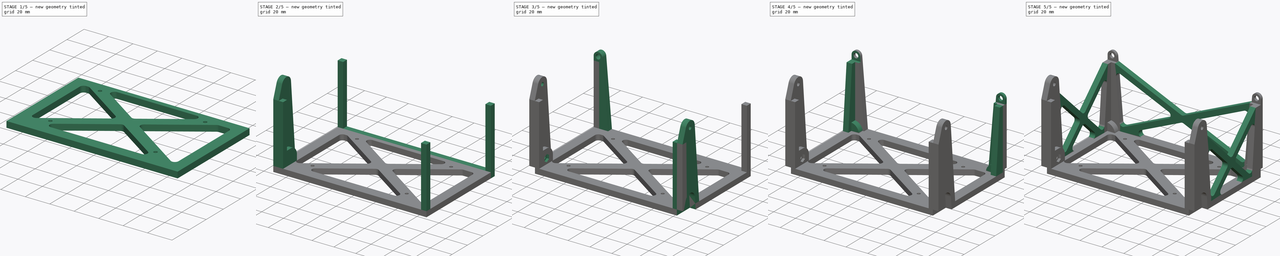
[diagram: build sequence overview — one tinted view per stage of 5, left to right]
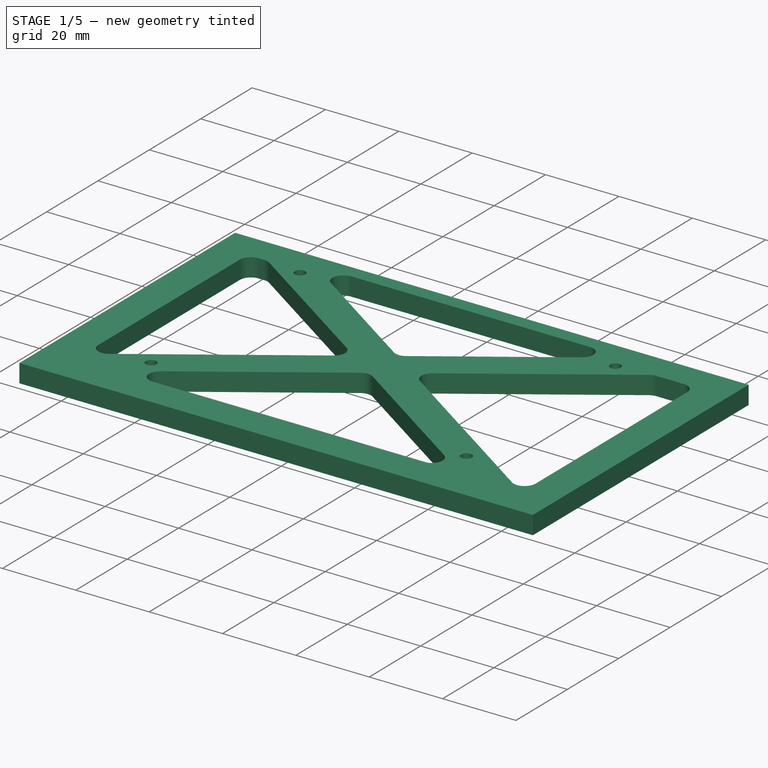
[diagram: stage 1 of 5 — iso view after this stage's code; geometry added in this stage tinted green]
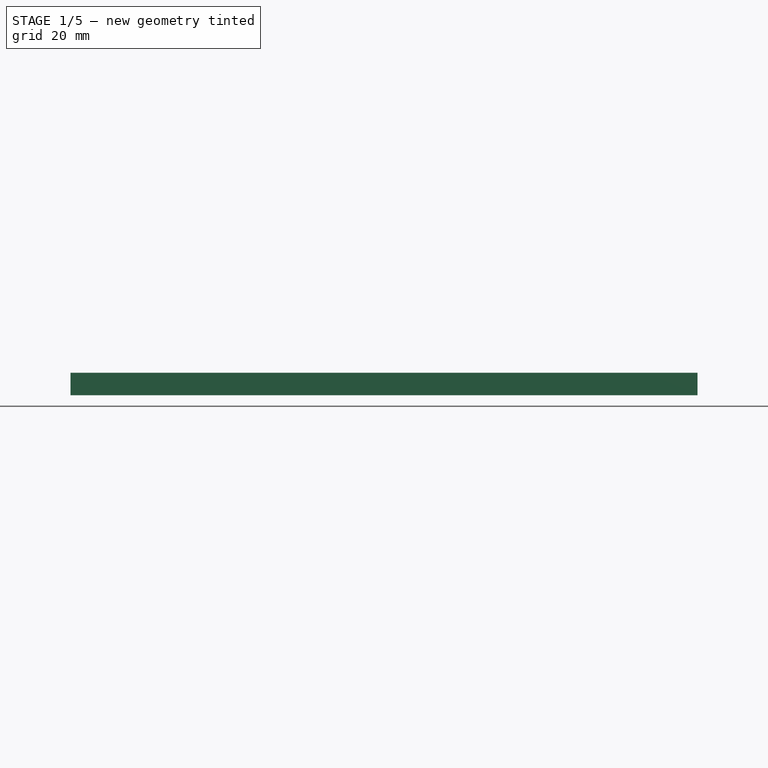
[diagram: stage 1 of 5 — front view after this stage's code; geometry added in this stage tinted green]
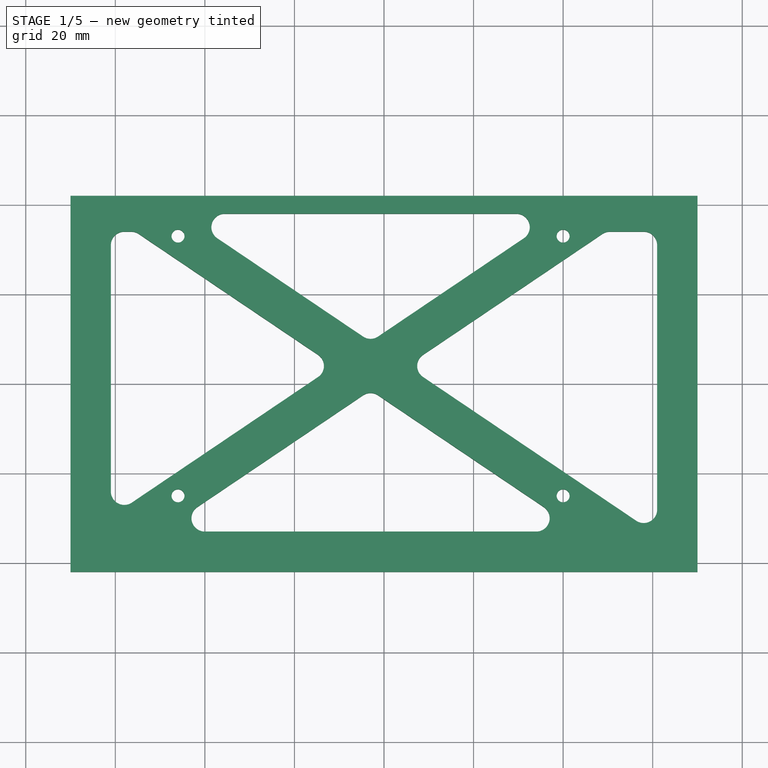
[diagram: stage 1 of 5 — top view after this stage's code; geometry added in this stage tinted green]
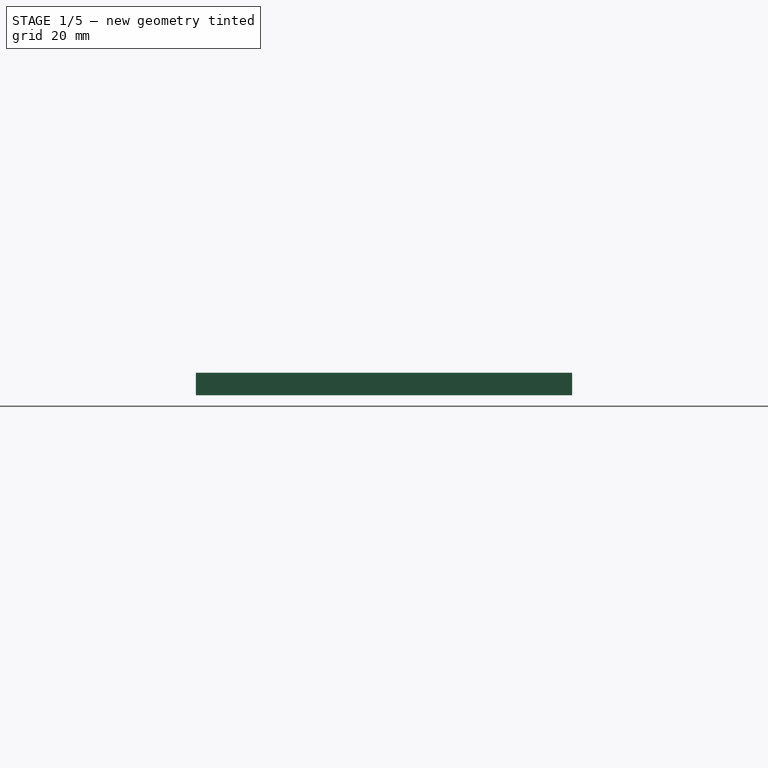
[diagram: stage 1 of 5 — right view after this stage's code; geometry added in this stage tinted green]
FCSTD DOCUMENT  (FreeCAD 0.19R)
Label: Jetson_box
License: All rights reserved
LicenseURL: http://en.wikipedia.org/wiki/All_rights_reserved
objects: Sketcher::SketchObject×25, PartDesign::Pad×14, PartDesign::Mirrored×8, PartDesign::Pocket×8, PartDesign::Hole×3, PartDesign::Body×1
note: 84 computed .brp shape members not serialized (recipe doc carries the construction recipe); baked Part::Feature solids carry a one-line shape summary decoded from their .brp

FEATURE [Sketcher::SketchObject] Sketch  label="floor_sketch"
  FullyConstrained = true
  MapMode = 5
  Support = -> [XY_Plane]
  sketch-geometry (4):
    g0: LineSegment StartX=-55 StartY=-42 StartZ=0 EndX=55 EndY=-42 EndZ=0
    g1: LineSegment StartX=55 StartY=-42 StartZ=0 EndX=55 EndY=42 EndZ=0
    g2: LineSegment StartX=55 StartY=42 StartZ=0 EndX=-55 EndY=42 EndZ=0
    g3: LineSegment StartX=-55 StartY=42 StartZ=0 EndX=-55 EndY=-42 EndZ=0
  constraints (11):
    c: Coincident(g0,g1)
    c: Coincident(g1,g2)
    c: Coincident(g2,g3)
    c: Coincident(g3,g0)
    c: Horizontal(g0)
    c: Horizontal(g2)
    c: Vertical(g1)
    c: Vertical(g3)
    c: Symmetric(g1,g0,g-1)
    c: DistanceX(g2,g2) = 110
    c: DistanceY(g3,g3) = 84
FEATURE [PartDesign::Pad] Pad  label="floor"
  Direction = (1,1,1)
  Length = 5
  Length2 = 100
  Profile = -> Sketch
  Type = 0
FEATURE [Sketcher::SketchObject] Sketch001  label="jetson_mount_holes_sketch"
  ExternalGeometry = -> [Pad]
  FullyConstrained = true
  MapMode = 5
  Placement = pos=(0,0,5) rot=(0,0,1;0rad)
  Support = -> [Pad]
  sketch-geometry (8):
    g0: GeomPoint X=-46 Y=33 Z=0
    g1: GeomPoint X=-46 Y=-25 Z=0
    g2: GeomPoint X=40 Y=-25 Z=0
    g3: GeomPoint X=40 Y=33 Z=0
    g4: Circle CenterX=-46 CenterY=33 CenterZ=0 NormalX=0 NormalY=0 NormalZ=1 AngleXU=0 Radius=1.375
    g5: Circle CenterX=40 CenterY=33 CenterZ=0 NormalX=0 NormalY=0 NormalZ=1 AngleXU=0 Radius=1.375
    g6: Circle CenterX=40 CenterY=-25 CenterZ=0 NormalX=0 NormalY=0 NormalZ=1 AngleXU=0 Radius=1.375
    g7: Circle CenterX=-46 CenterY=-25 CenterZ=0 NormalX=0 NormalY=0 NormalZ=1 AngleXU=0 Radius=1.375
  constraints (16):
    c: Vertical(g1,g0)
    c: Vertical(g3,g2)
    c: Horizontal(g0,g3)
    c: Horizontal(g1,g2)
    c: DistanceX(g0,g3) = 86
    c: DistanceY(g1,g0) = 58
    c: DistanceX(g-3,g0) = 9
    c: DistanceY(g0,g-3) = 9
    c: Coincident(g4,g0)
    c: Radius(g4) = 1.375
    c: Coincident(g5,g3)
    c: Coincident(g6,g2)
    c: Coincident(g7,g1)
    c: Equal(g4,g5)
    c: Equal(g4,g7)
    c: Equal(g4,g6)
FEATURE [PartDesign::Hole] Hole  label="jetson_mount_holes"
  BaseFeature = -> Pad
  Depth = 25
  DepthType = 1
  Diameter = 2.9
  DrillForDepth = false
  DrillPoint = 1
  DrillPointAngle = 118
  HoleCutCountersinkAngle = 90
  HoleCutCustomValues = false
  HoleCutDepth = 0
  HoleCutDiameter = 6.1
  HoleCutType = 0
  ModelActualThread = false
  Profile = -> Sketch001
  Tapered = false
  TaperedAngle = 90
  ThreadAngle = 0
  ThreadClass = 0
  ThreadCutOffInner = 0
  ThreadCutOffOuter = 0
  ThreadDirection = 0
  ThreadFit = 0
  ThreadPitch = 0
  ThreadSize = 8
  ThreadType = 1
  Threaded = false
FEATURE [Sketcher::SketchObject] Sketch002  label="left_bot_stack_edge_sketch"
  ExternalGeometry = -> [Hole]
  FullyConstrained = true
  MapMode = 5
  Placement = pos=(-55,0,0) rot=(0.57735,-0.57735,-0.57735;2.0944rad)
  Support = -> [Hole]
  sketch-geometry (4):
    g0: LineSegment StartX=-42 StartY=0 StartZ=0 EndX=42 EndY=0 EndZ=0
    g1: LineSegment StartX=42 StartY=0 StartZ=0 EndX=42 EndY=5 EndZ=0
    g2: LineSegment StartX=42 StartY=5 StartZ=0 EndX=-42 EndY=5 EndZ=0
    g3: LineSegment StartX=-42 StartY=5 StartZ=0 EndX=-42 EndY=0 EndZ=0
  constraints (10):
    c: Coincident(g0,g1)
    c: Coincident(g1,g2)
    c: Coincident(g2,g3)
    c: Coincident(g3,g0)
    c: Horizontal(g0)
    c: Horizontal(g2)
    c: Vertical(g1)
    c: Vertical(g3)
    c: Coincident(g0,g-4)
    c: Coincident(g1,g-3)
FEATURE [PartDesign::Pad] Pad001  label="left_bot_stack_edge"
  BaseFeature = -> Hole
  Direction = (1,1,1)
  Length = 10
  Length2 = 100
  Profile = -> Sketch002
  Type = 0
FEATURE [Sketcher::SketchObject] Sketch004  label="bot_lightening_hole_sketch"
  FullyConstrained = false
  MapMode = 5
  Placement = pos=(0,0,5) rot=(0,0,1;0rad)
  sketch-geometry (43):
    g0: LineSegment StartX=-46 StartY=33 StartZ=0 EndX=40 EndY=-25 EndZ=0
    g1: LineSegment StartX=-46 StartY=-25 StartZ=0 EndX=40 EndY=33 EndZ=0
    g2: LineSegment StartX=29.5521 StartY=38 StartZ=0 EndX=-35.5521 EndY=38 EndZ=0
    g3: LineSegment StartX=-54.7705 StartY=33.4872 StartZ=0 EndX=-14.736 EndY=6.48722 EndZ=0
    g4: LineSegment StartX=-37.2295 StartY=32.5128 StartZ=0 EndX=-4.67743 EndY=10.559 EndZ=0
    g5: LineSegment StartX=31.2295 StartY=32.5128 StartZ=0 EndX=-1.32257 EndY=10.559 EndZ=0
    g6: LineSegment StartX=48.7705 StartY=33.4872 StartZ=0 EndX=8.73599 EndY=6.48722 EndZ=0
    g7: LineSegment StartX=-61 StartY=31 StartZ=0 EndX=-61 EndY=-24.0468 EndZ=0
    g8: LineSegment StartX=-40.0004 StartY=-33 StartZ=0 EndX=34.0004 EndY=-33 EndZ=0
    g9: LineSegment StartX=50.4479 StartY=34 StartZ=0 EndX=58 EndY=34 EndZ=0
    g10: LineSegment StartX=61 StartY=31 StartZ=0 EndX=61 EndY=-28.0933 EndZ=0
    g11: LineSegment StartX=8.73599 StartY=1.51278 StartZ=0 EndX=56.3226 EndY=-30.5805 EndZ=0
    g12: LineSegment StartX=-14.736 StartY=1.51278 StartZ=0 EndX=-56.3226 EndY=-26.534 EndZ=0
    g13: LineSegment StartX=-1.32257 StartY=-2.55904 StartZ=0 EndX=35.6778 EndY=-27.5128 EndZ=0
    g14: LineSegment StartX=-4.67743 StartY=-2.55904 StartZ=0 EndX=-41.6778 EndY=-27.5128 EndZ=0
    g15: ArcOfCircle CenterX=-35.5521 CenterY=35 CenterZ=0 NormalX=0 NormalY=0 NormalZ=1 AngleXU=0 Radius=3 StartAngle=1.5708 EndAngle=4.11904
    g16: GeomPoint X=-45.3657 Y=38 Z=0
    g17: ArcOfCircle CenterX=29.5521 CenterY=35 CenterZ=0 NormalX=0 NormalY=0 NormalZ=1 AngleXU=0 Radius=3 StartAngle=5.30574 EndAngle=7.85398
    g18: GeomPoint X=39.3657 Y=38 Z=0
    g19: ArcOfCircle CenterX=-40.0004 CenterY=-30 CenterZ=0 NormalX=0 NormalY=0 NormalZ=1 AngleXU=0 Radius=3 StartAngle=2.16415 EndAngle=4.71239
    g20: ArcOfCircle CenterX=34.0004 CenterY=-30 CenterZ=0 NormalX=0 NormalY=0 NormalZ=1 AngleXU=0 Radius=3 StartAngle=4.71239 EndAngle=7.26063
    g21: GeomPoint X=43.814 Y=-33 Z=0
    g22: ArcOfCircle CenterX=58 CenterY=-28.0933 CenterZ=0 NormalX=0 NormalY=0 NormalZ=1 AngleXU=0 Radius=3 StartAngle=4.11904 EndAngle=6.28319
    g23: GeomPoint X=61 Y=-33.735 Z=0
    g24: ArcOfCircle CenterX=-16.4134 CenterY=4 CenterZ=0 NormalX=0 NormalY=0 NormalZ=1 AngleXU=0 Radius=3 StartAngle=5.30574 EndAngle=7.26063
    g25: GeomPoint X=-11.048 Y=4 Z=0
    g26: ArcOfCircle CenterX=10.4134 CenterY=4 CenterZ=0 NormalX=0 NormalY=0 NormalZ=1 AngleXU=0 Radius=3 StartAngle=2.16415 EndAngle=4.11904
    g27: GeomPoint X=5.04805 Y=4 Z=0
    g28: ArcOfCircle CenterX=-58 CenterY=-24.0468 CenterZ=0 NormalX=0 NormalY=0 NormalZ=1 AngleXU=0 Radius=3 StartAngle=3.14159 EndAngle=5.30574
    g29: GeomPoint X=-61 Y=-29.6885 Z=0
    g30: ArcOfCircle CenterX=58 CenterY=31 CenterZ=0 NormalX=0 NormalY=0 NormalZ=1 AngleXU=0 Radius=3 StartAngle=1e-16 EndAngle=1.5708
    g31: GeomPoint X=61 Y=34 Z=0
    g32: ArcOfCircle CenterX=-3 CenterY=13.0463 CenterZ=0 NormalX=0 NormalY=0 NormalZ=1 AngleXU=0 Radius=3 StartAngle=4.11904 EndAngle=5.30574
    g33: GeomPoint X=-3 Y=9.42775 Z=0
    g34: ArcOfCircle CenterX=-3 CenterY=-5.04626 CenterZ=0 NormalX=0 NormalY=0 NormalZ=1 AngleXU=0 Radius=3 StartAngle=0.977446 EndAngle=2.16415
    g35: GeomPoint X=-3 Y=-1.42775 Z=0
    g36: ArcOfCircle CenterX=50.4479 CenterY=31 CenterZ=0 NormalX=0 NormalY=0 NormalZ=1 AngleXU=0 Radius=3 StartAngle=1.5708 EndAngle=2.16415
    g37: GeomPoint X=49.5308 Y=34 Z=0
    g38: LineSegment StartX=-58 StartY=34 StartZ=0 EndX=-56.4479 EndY=34 EndZ=0
    g39: ArcOfCircle CenterX=-56.4479 CenterY=31 CenterZ=0 NormalX=0 NormalY=0 NormalZ=1 AngleXU=0 Radius=3 StartAngle=0.977446 EndAngle=1.5708
    g40: GeomPoint X=-55.5308 Y=34 Z=0
    g41: ArcOfCircle CenterX=-58 CenterY=31 CenterZ=0 NormalX=0 NormalY=0 NormalZ=1 AngleXU=0 Radius=3 StartAngle=1.5708 EndAngle=3.14159
    g42: GeomPoint X=-61 Y=34 Z=0
  constraints (86):
    c: Horizontal(g2)
    c: Distance(g16,g0) = 4.5
    c: Distance(g18,g1) = 4.5
    c: Parallel(g1,g5)
    c: Parallel(g4,g0)
    c: Parallel(g6,g1)
    c: Parallel(g3,g0)
    c: Vertical(g7)
    c: Horizontal(g8)
    c: Distance(g37,g1) = 4.5
    c: Horizontal(g9)
    c: Vertical(g10)
    c: Tangent(g4,g11)
    c: Tangent(g5,g12)
    c: Tangent(g3,g13)
    c: Tangent(g6,g14)
    c: PointOnObject(g16,g2)
    c: PointOnObject(g16,g4)
    c: Tangent(g2,g15) = -1.5708
    c: Tangent(g4,g15) = -1.5708
    c: PointOnObject(g18,g2)
    c: PointOnObject(g18,g5)
    c: Tangent(g2,g17) = -1.5708
    c: Tangent(g5,g17) = 1.5708
    c: Radius(g15) = 3
    c: Equal(g15,g17)
    c: Tangent(g14,g19) = -1.5708
    c: Tangent(g8,g19) = -1.5708
    c: PointOnObject(g21,g13)
    c: PointOnObject(g21,g8)
    c: Tangent(g13,g20) = 1.5708
    c: Tangent(g8,g20) = -1.5708
    c: PointOnObject(g23,g11)
    c: PointOnObject(g23,g10)
    c: Tangent(g11,g22) = -1.5708
    c: Tangent(g10,g22) = 1.5708
    c: PointOnObject(g25,g3)
    c: PointOnObject(g25,g12)
    c: Tangent(g3,g24) = 1.5708
    c: Tangent(g12,g24) = 1.5708
    c: PointOnObject(g27,g6)
    c: PointOnObject(g27,g11)
    c: Tangent(g6,g26) = -1.5708
    c: Tangent(g11,g26) = -1.5708
    c: Equal(g15,g24)
    c: Equal(g15,g19)
    c: Equal(g15,g20)
    c: Equal(g15,g22)
    c: Equal(g15,g26)
    c: PointOnObject(g29,g7)
    c: PointOnObject(g29,g12)
    c: Tangent(g7,g28) = -1.5708
    c: Tangent(g12,g28) = 1.5708
    c: PointOnObject(g31,g9)
    c: PointOnObject(g31,g10)
    c: Tangent(g9,g30) = 1.5708
    c: Tangent(g10,g30) = 1.5708
    c: Equal(g15,g28)
    c: Equal(g15,g30)
    c: PointOnObject(g33,g4)
    c: PointOnObject(g33,g5)
    c: Tangent(g4,g32) = -1.5708
    c: Tangent(g5,g32) = 1.5708
    c: PointOnObject(g35,g14)
    c: PointOnObject(g35,g13)
    c: Tangent(g14,g34) = -1.5708
    c: Tangent(g13,g34) = 1.5708
    c: PointOnObject(g37,g6)
    c: PointOnObject(g37,g9)
    c: Tangent(g6,g36) = -1.5708
    c: Tangent(g9,g36) = 1.5708
    c: Equal(g15,g32)
    c: Equal(g15,g34)
    c: Equal(g15,g36)
    c: Horizontal(g38)
    c: Distance(g40,g0) = 4.5
    c: PointOnObject(g40,g38)
    c: PointOnObject(g40,g3)
    c: Tangent(g38,g39) = 1.5708
    c: Tangent(g3,g39) = 1.5708
    c: PointOnObject(g42,g38)
    c: PointOnObject(g42,g7)
    c: Tangent(g38,g41) = 1.5708
    c: Tangent(g7,g41) = -1.5708
    c: Equal(g15,g39)
    c: Equal(g15,g41)
FEATURE [PartDesign::Mirrored] Mirrored  label="bot_stack_edge"
  BaseFeature = -> Pad001
  MirrorPlane = -> YZ_Plane
  Originals = -> [Pad001]
FEATURE [PartDesign::Pocket] Pocket  label="bot_lightening_hole"
  BaseFeature = -> Mirrored
  Length = 5
  Length2 = 100
  Profile = -> Sketch004
  Type = 1
FEATURE [Sketcher::SketchObject] Sketch005  label="left_wall_base_sketch"
  ExternalGeometry = -> [Pocket]
  FullyConstrained = true
  MapMode = 5
  Placement = pos=(-65,0,0) rot=(0.57735,-0.57735,-0.57735;2.0944rad)
  Support = -> [Pocket]
  sketch-geometry (4):
    g0: LineSegment StartX=-42 StartY=0 StartZ=0 EndX=42 EndY=0 EndZ=0
    g1: LineSegment StartX=42 StartY=0 StartZ=0 EndX=42 EndY=5 EndZ=0
    g2: LineSegment StartX=42 StartY=5 StartZ=0 EndX=-42 EndY=5 EndZ=0
    g3: LineSegment StartX=-42 StartY=5 StartZ=0 EndX=-42 EndY=0 EndZ=0
  constraints (10):
    c: Coincident(g0,g1)
    c: Coincident(g1,g2)
    c: Coincident(g2,g3)
    c: Coincident(g3,g0)
    c: Horizontal(g0)
    c: Horizontal(g2)
    c: Vertical(g1)
    c: Vertical(g3)
    c: Coincident(g0,g-4)
    c: Coincident(g1,g-3)
FEATURE [PartDesign::Pad] Pad002  label="left_wall_base"
  BaseFeature = -> Pocket
  Direction = (1,1,1)
  Length = 5
  Length2 = 100
  Profile = -> Sketch005
  Type = 0
FEATURE [PartDesign::Mirrored] Mirrored002  label="side_wall_base"
  BaseFeature = -> Pad002
  MirrorPlane = -> YZ_Plane
  Originals = -> [Pad002]
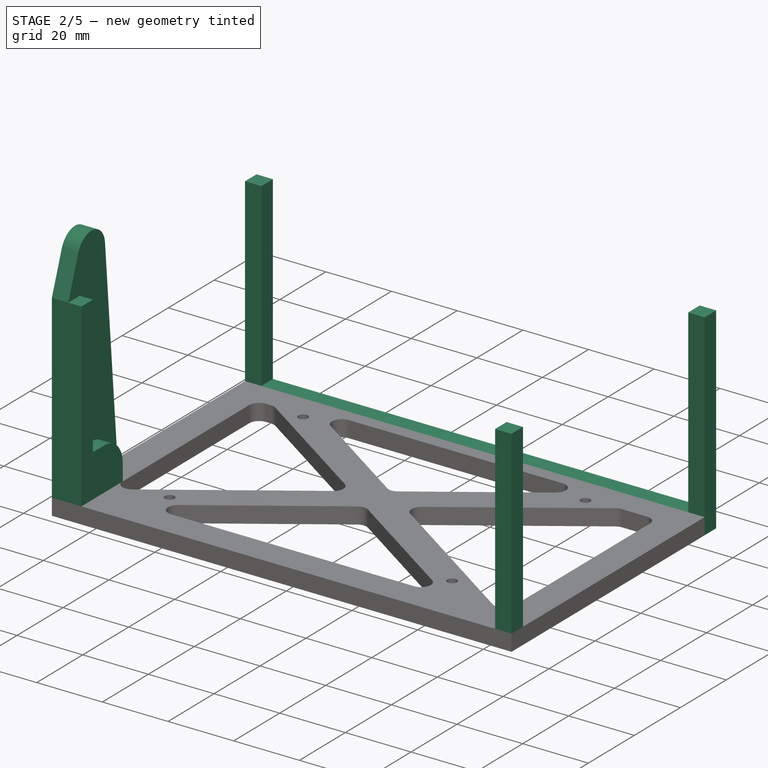
[diagram: stage 2 of 5 — iso view after this stage's code; geometry added in this stage tinted green]
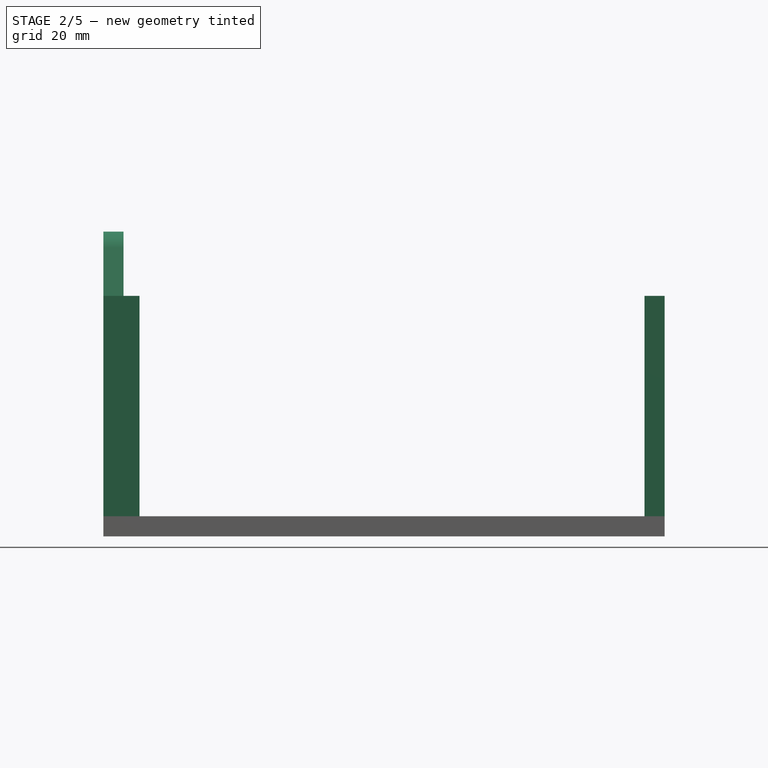
[diagram: stage 2 of 5 — front view after this stage's code; geometry added in this stage tinted green]
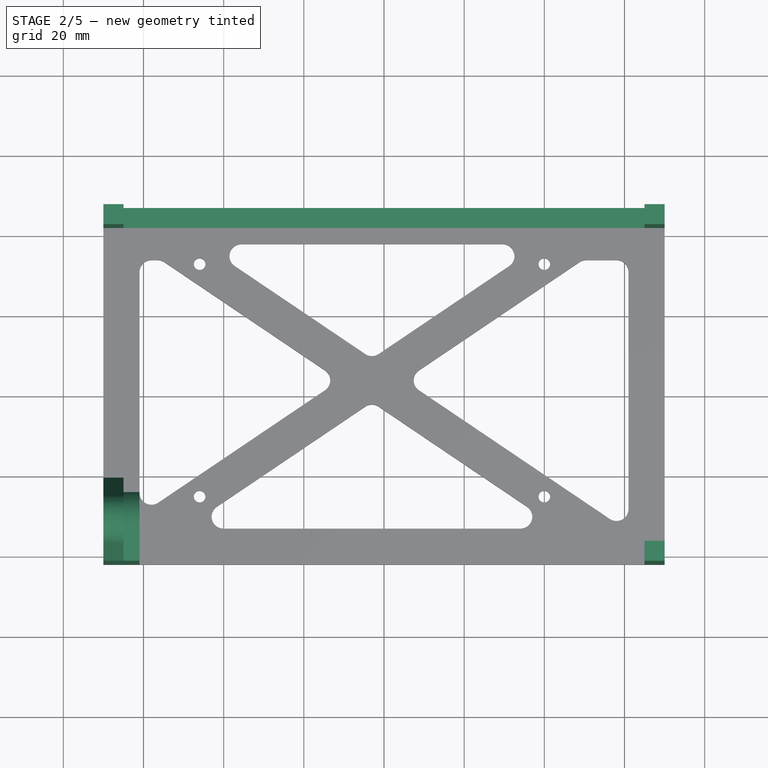
[diagram: stage 2 of 5 — top view after this stage's code; geometry added in this stage tinted green]
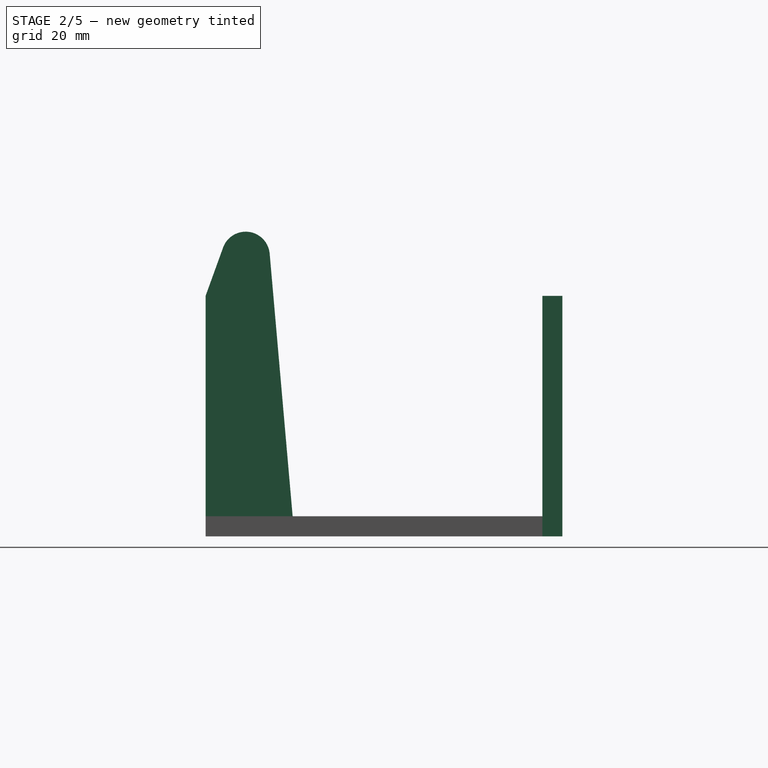
[diagram: stage 2 of 5 — right view after this stage's code; geometry added in this stage tinted green]
FEATURE [Sketcher::SketchObject] Sketch006  label="back_wall_base_sketch"
  ExternalGeometry = -> [Mirrored002]
  FullyConstrained = false
  MapMode = 5
  Placement = pos=(0,42,0) rot=(0,0.707107,0.707107;3.14159rad)
  Support = -> [Mirrored002]
  sketch-geometry (4):
    g0: LineSegment StartX=-70 StartY=0 StartZ=0 EndX=70 EndY=0 EndZ=0
    g1: LineSegment StartX=70 StartY=0 StartZ=0 EndX=70 EndY=5 EndZ=0
    g2: LineSegment StartX=70 StartY=5 StartZ=0 EndX=-70 EndY=5 EndZ=0
    g3: LineSegment StartX=-70 StartY=5 StartZ=0 EndX=-70 EndY=0 EndZ=0
  constraints (8):
    c: Coincident(g0,g1)
    c: Coincident(g1,g2)
    c: Coincident(g2,g3)
    c: Coincident(g3,g0)
    c: Horizontal(g0)
    c: Horizontal(g2)
    c: Vertical(g1)
    c: Vertical(g3)
FEATURE [PartDesign::Pad] Pad003  label="back_wall_base"
  BaseFeature = -> Mirrored002
  Direction = (1,1,1)
  Length = 5
  Length2 = 100
  Profile = -> Sketch006
  Type = 0
FEATURE [Sketcher::SketchObject] Sketch007  label="left_pillar_sketch"
  ExternalGeometry = -> [Pad003]
  FullyConstrained = true
  MapMode = 5
  Placement = pos=(0,0,5) rot=(0,0,1;0rad)
  Support = -> [Pad003]
  sketch-geometry (8):
    g0: LineSegment StartX=-65 StartY=-42 StartZ=0 EndX=-70 EndY=-42 EndZ=0
    g1: LineSegment StartX=-70 StartY=-42 StartZ=0 EndX=-70 EndY=-37 EndZ=0
    g2: LineSegment StartX=-70 StartY=-37 StartZ=0 EndX=-65 EndY=-37 EndZ=0
    g3: LineSegment StartX=-65 StartY=-37 StartZ=0 EndX=-65 EndY=-42 EndZ=0
    g4: LineSegment StartX=-65 StartY=42 StartZ=0 EndX=-70 EndY=42 EndZ=0
    g5: LineSegment StartX=-70 StartY=42 StartZ=0 EndX=-70 EndY=47 EndZ=0
    g6: LineSegment StartX=-70 StartY=47 StartZ=0 EndX=-65 EndY=47 EndZ=0
    g7: LineSegment StartX=-65 StartY=47 StartZ=0 EndX=-65 EndY=42 EndZ=0
  constraints (21):
    c: Coincident(g0,g1)
    c: Coincident(g1,g2)
    c: Coincident(g2,g3)
    c: Coincident(g3,g0)
    c: Horizontal(g0)
    c: Horizontal(g2)
    c: Vertical(g1)
    c: Vertical(g3)
    c: Coincident(g0,g-4)
    c: PointOnObject(g1,g-3)
    c: Equal(g1,g0)
    c: Coincident(g4,g5)
    c: Coincident(g5,g6)
    c: Coincident(g6,g7)
    c: Coincident(g7,g4)
    c: Horizontal(g4)
    c: Horizontal(g6)
    c: Vertical(g5)
    c: Vertical(g7)
    c: Coincident(g4,g-7)
    c: Coincident(g5,g-6)
FEATURE [PartDesign::Pad] Pad004  label="left_pillar"
  BaseFeature = -> Pad003
  Direction = (1,1,1)
  Length = 55
  Length2 = 100
  Profile = -> Sketch007
  Type = 0
FEATURE [PartDesign::Mirrored] Mirrored003  label="pillars"
  BaseFeature = -> Pad004
  MirrorPlane = -> Sketch007 [V_Axis]
  Originals = -> [Pad004]
FEATURE [Sketcher::SketchObject] Sketch008  label="left_ear_and_support_sketch"
  ExternalGeometry = -> [Mirrored003]
  FullyConstrained = true
  MapMode = 5
  Placement = pos=(-70,0,0) rot=(0.57735,-0.57735,-0.57735;2.0944rad)
  Support = -> [Mirrored003]
  sketch-geometry (7):
    g0: GeomPoint X=32 Y=70 Z=0
    g1: ArcOfCircle CenterX=32 CenterY=70 CenterZ=0 NormalX=0 NormalY=0 NormalZ=1 AngleXU=0 Radius=6 StartAngle=0.347249 EndAngle=3.05433
    g2: LineSegment StartX=42 StartY=60 StartZ=0 EndX=37 EndY=60 EndZ=0
    g3: LineSegment StartX=37.6419 StartY=72.0419 StartZ=0 EndX=42 EndY=60 EndZ=0
    g4: LineSegment StartX=26.0228 StartY=70.5229 StartZ=0 EndX=20.2903 EndY=5 EndZ=0
    g5: LineSegment StartX=37 StartY=5 StartZ=0 EndX=37 EndY=60 EndZ=0
    g6: LineSegment StartX=20.2903 StartY=5 StartZ=0 EndX=37 EndY=5 EndZ=0
  constraints (15):
    c: Coincident(g1,g0)
    c: Radius(g1) = 6
    c: Coincident(g3,g2)
    c: Tangent(g3,g1) = 1.5708
    c: DistanceX(g1,g-3) = 10
    c: DistanceY(g-3,g1) = 10
    c: Coincident(g2,g-3)
    c: Coincident(g2,g-3)
    c: PointOnObject(g4,g-5)
    c: Coincident(g5,g-5)
    c: Coincident(g5,g2)
    c: Tangent(g4,g1) = -1.5708
    c: Coincident(g6,g4)
    c: Coincident(g6,g5)
    c: Angle(g6,g4) = 1.48353
FEATURE [PartDesign::Pad] Pad005  label="left_ear_and_support"
  BaseFeature = -> Mirrored003
  Direction = (1,1,1)
  Length = 5
  Length2 = 100
  Profile = -> Sketch008
  Reversed = true
  Type = 3
  UpToFace = -> Mirrored003 [Face44]
FEATURE [Sketcher::SketchObject] Sketch009  label="left_ear_hole_sketch"
  ExternalGeometry = -> [Pad005]
  FullyConstrained = true
  MapMode = 5
  Placement = pos=(-70,0,0) rot=(0.57735,-0.57735,-0.57735;2.0944rad)
  Support = -> [Pad005]
  sketch-geometry (9):
    g0: GeomPoint X=32 Y=10 Z=0
    g1: ArcOfCircle CenterX=32 CenterY=10 CenterZ=0 NormalX=0 NormalY=0 NormalZ=1 AngleXU=0 Radius=6.2 StartAngle=0.336766 EndAngle=3.05433
    g2: LineSegment StartX=37.8517 StartY=12.0487 StartZ=0 EndX=42 EndY=0.2 EndZ=0
    g3: LineSegment StartX=42 StartY=0 StartZ=0 EndX=42 EndY=0.2 EndZ=0
    g4: LineSegment StartX=25.8236 StartY=10.5404 StartZ=0 EndX=24.9014 EndY=0 EndZ=0
    g5: LineSegment StartX=24.9014 StartY=0 StartZ=0 EndX=42 EndY=0 EndZ=0
    g6: LineSegment StartX=42 StartY=5 StartZ=0 EndX=40.3195 EndY=5 EndZ=0
    g7: LineSegment StartX=37.8517 StartY=12.0487 StartZ=0 EndX=40.3195 EndY=5 EndZ=0
    g8: LineSegment StartX=42 StartY=5 StartZ=0 EndX=42 EndY=0.2 EndZ=0
  constraints (21):
    c: DistanceX(g0,g-3) = 10
    c: DistanceY(g-3,g0) = 10
    c: Coincident(g1,g0)
    c: Coincident(g3,g-3)
    c: Coincident(g3,g2)
    c: Vertical(g3)
    c: Tangent(g2,g1) = 1.5708
    c: Radius(g1) = 6.2
    c: Distance(g3) = 0.2
    c: PointOnObject(g4,g-1)
    c: Tangent(g4,g1) = -1.5708
    c: Coincident(g5,g4)
    c: Coincident(g5,g3)
    c: Coincident(g6,g-4)
    c: PointOnObject(g6,g2)
    c: Horizontal(g6)
    c: Coincident(g7,g1)
    c: Coincident(g7,g6)
    c: Coincident(g8,g6)
    c: Coincident(g8,g3)
    c: Parallel(g4,g-5)
FEATURE [Sketcher::SketchObject] Sketch010  label="front_left_front_stiffener_sketch"
  ExternalGeometry = -> [Pad005]
  FullyConstrained = true
  MapMode = 5
  Placement = pos=(0,-42,0) rot=(1,0,0;1.5708rad)
  Support = -> [Pad005]
  sketch-geometry (4):
    g0: LineSegment StartX=-65 StartY=60 StartZ=0 EndX=-61 EndY=60 EndZ=0
    g1: LineSegment StartX=-61 StartY=60 StartZ=0 EndX=-61 EndY=5 EndZ=0
    g2: LineSegment StartX=-61 StartY=5 StartZ=0 EndX=-65 EndY=5 EndZ=0
    g3: LineSegment StartX=-65 StartY=5 StartZ=0 EndX=-65 EndY=60 EndZ=0
  constraints (10):
    c: Coincident(g0,g1)
    c: Coincident(g1,g2)
    c: Coincident(g2,g3)
    c: Coincident(g3,g0)
    c: Horizontal(g0)
    c: Horizontal(g2)
    c: Vertical(g1)
    c: Vertical(g3)
    c: Coincident(g0,g-3)
    c: Coincident(g1,g-4)
FEATURE [PartDesign::Pad] Pad006  label="front_left_front_stiffener"
  BaseFeature = -> Pad005
  Direction = (1,1,1)
  Length = 5
  Length2 = 100
  Profile = -> Sketch010
  Reversed = true
  Type = 0
FEATURE [Sketcher::SketchObject] Sketch011  label="left_ear_connecter_sketch"
  ExternalGeometry = -> [Pad006]
  FullyConstrained = true
  MapMode = 5
  Placement = pos=(-65,0,0) rot=(0.57735,0.57735,0.57735;2.0944rad)
  Support = -> [Pad006]
  sketch-geometry (6):
    g0: GeomPoint X=-32 Y=10 Z=0
    g1: ArcOfCircle CenterX=-32 CenterY=10 CenterZ=0 NormalX=0 NormalY=0 NormalZ=1 AngleXU=0 Radius=8 StartAngle=-9e-16 EndAngle=1.5708
    g2: LineSegment StartX=-32 StartY=18 StartZ=0 EndX=-37 EndY=18 EndZ=0
    g3: LineSegment StartX=-37 StartY=18 StartZ=0 EndX=-37 EndY=5 EndZ=0
    g4: LineSegment StartX=-37 StartY=5 StartZ=0 EndX=-24 EndY=5 EndZ=0
    g5: LineSegment StartX=-24 StartY=5 StartZ=0 EndX=-24 EndY=10 EndZ=0
  constraints (14):
    c: Coincident(g1,g0)
    c: Radius(g1) = 8
    c: Coincident(g2,g3)
    c: Vertical(g3)
    c: Horizontal(g4)
    c: Coincident(g4,g5)
    c: Vertical(g5)
    c: Horizontal(g2)
    c: Tangent(g2,g1) = -1.5708
    c: Tangent(g5,g1) = -1.5708
    c: Coincident(g3,g4)
    c: Coincident(g3,g-6)
    c: DistanceX(g-5,g1) = 10
    c: DistanceY(g-5,g1) = 10
FEATURE [PartDesign::Pad] Pad007  label="left_ear_connecter"
  BaseFeature = -> Pad006
  Direction = (1,1,1)
  Length = 10
  Length2 = 100
  Profile = -> Sketch011
  Type = 3
  UpToFace = -> Pad006 [Face42]
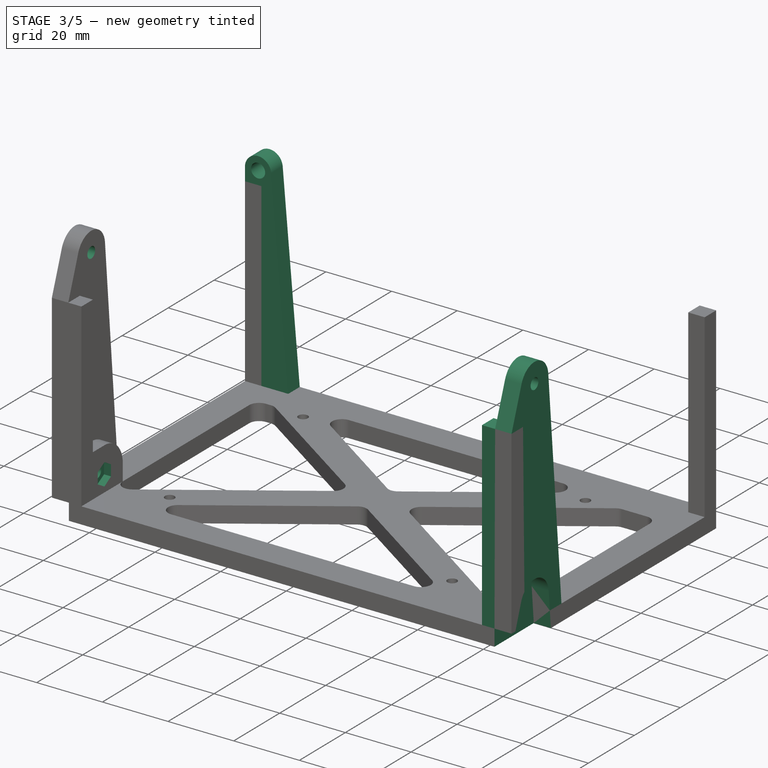
[diagram: stage 3 of 5 — iso view after this stage's code; geometry added in this stage tinted green]
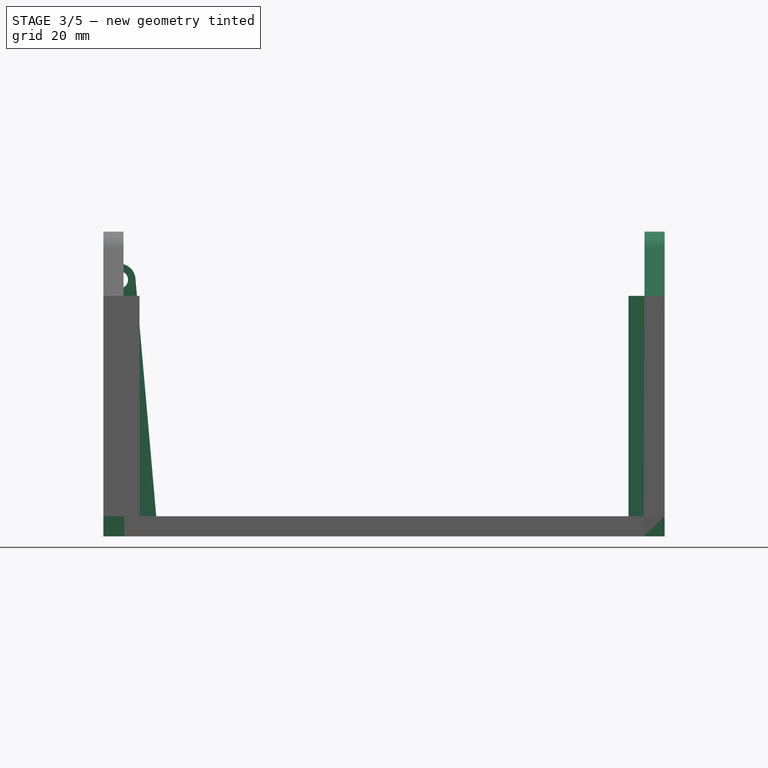
[diagram: stage 3 of 5 — front view after this stage's code; geometry added in this stage tinted green]
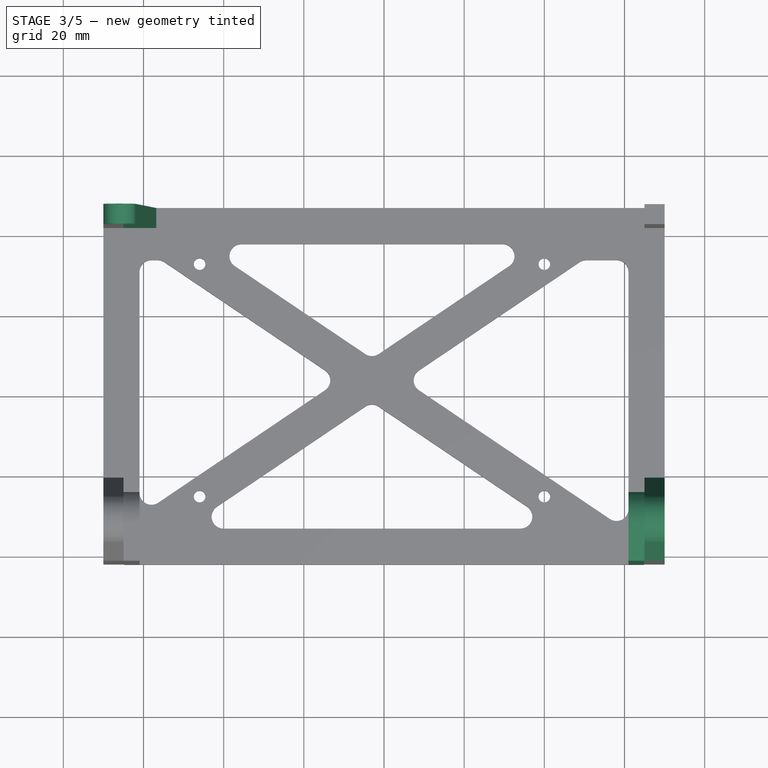
[diagram: stage 3 of 5 — top view after this stage's code; geometry added in this stage tinted green]
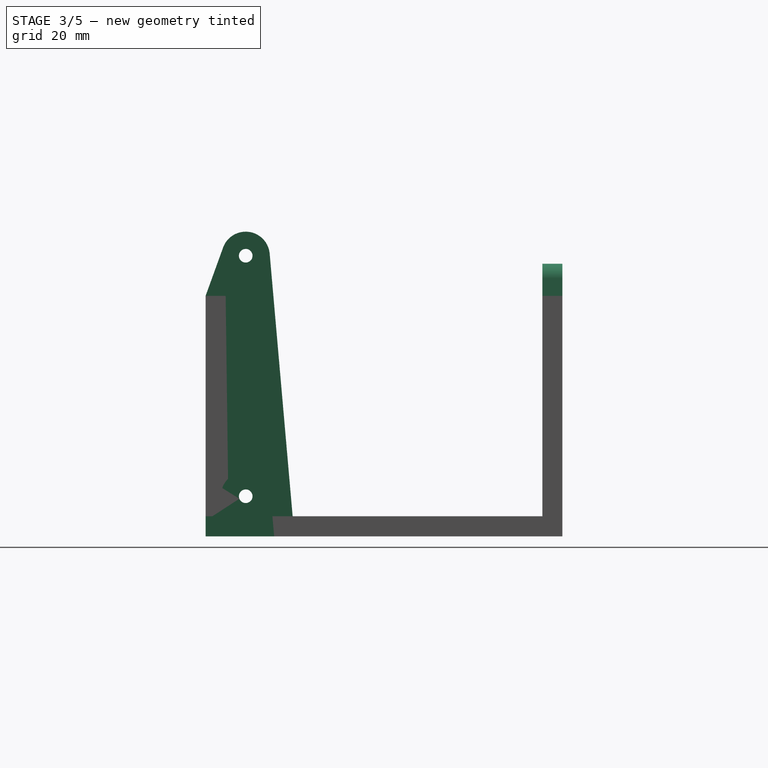
[diagram: stage 3 of 5 — right view after this stage's code; geometry added in this stage tinted green]
FEATURE [PartDesign::Pocket] Pocket001  label="left_ear_hole"
  BaseFeature = -> Pad007
  Length = 0
  Length2 = 100
  Offset = 0.2
  Profile = -> Sketch009
  Type = 3
  UpToFace = -> Pad007 [Face63]
FEATURE [Sketcher::SketchObject] Sketch012  label="left_ear_M3_hole_sketch"
  ExternalGeometry = -> [Pocket001]
  FullyConstrained = true
  MapMode = 5
  Placement = pos=(-70,0,0) rot=(0.57735,-0.57735,-0.57735;2.0944rad)
  Support = -> [Pocket001]
  sketch-geometry (1):
    g0: Circle CenterX=32 CenterY=70 CenterZ=0 NormalX=0 NormalY=0 NormalZ=1 AngleXU=0 Radius=1.7
  constraints (2):
    c: Radius(g0) = 1.7
    c: Coincident(g-3,g0)
FEATURE [PartDesign::Hole] Hole001  label="left_ear_M3_hole"
  BaseFeature = -> Pocket001
  Depth = 25
  DepthType = 1
  Diameter = 3.4
  DrillForDepth = false
  DrillPoint = 1
  DrillPointAngle = 118
  HoleCutCountersinkAngle = 90
  HoleCutCustomValues = false
  HoleCutDepth = 0
  HoleCutDiameter = 6.1
  HoleCutType = 0
  ModelActualThread = false
  Profile = -> Sketch012
  Tapered = false
  TaperedAngle = 90
  ThreadAngle = 0
  ThreadClass = 0
  ThreadCutOffInner = 0
  ThreadCutOffOuter = 0
  ThreadDirection = 0
  ThreadFit = 0
  ThreadPitch = 0
  ThreadSize = 9
  ThreadType = 1
  Threaded = false
FEATURE [Sketcher::SketchObject] Sketch013  label="left_ear_connecter_hex_sketch"
  ExternalGeometry = -> [Hole001]
  FullyConstrained = true
  MapMode = 5
  Placement = pos=(-61,0,0) rot=(0.57735,0.57735,0.57735;2.0944rad)
  Support = -> [Hole001]
  sketch-geometry (7):
    g0: LineSegment StartX=-32 StartY=13.3486 StartZ=0 EndX=-34.9 EndY=11.6743 EndZ=0
    g1: LineSegment StartX=-34.9 StartY=11.6743 StartZ=0 EndX=-34.9 EndY=8.32568 EndZ=0
    g2: LineSegment StartX=-34.9 StartY=8.32568 StartZ=0 EndX=-32 EndY=6.65137 EndZ=0
    g3: LineSegment StartX=-32 StartY=6.65137 StartZ=0 EndX=-29.1 EndY=8.32568 EndZ=0
    g4: LineSegment StartX=-29.1 StartY=8.32568 StartZ=0 EndX=-29.1 EndY=11.6743 EndZ=0
    g5: LineSegment StartX=-29.1 StartY=11.6743 StartZ=0 EndX=-32 EndY=13.3486 EndZ=0
    g6: Circle CenterX=-32 CenterY=10 CenterZ=0 NormalX=0 NormalY=0 NormalZ=1 AngleXU=0 Radius=3.34863
  constraints (16):
    c: Coincident(g0,g1)
    c: Coincident(g1,g2)
    c: Coincident(g2,g3)
    c: Coincident(g3,g4)
    c: Coincident(g4,g5)
    c: Coincident(g5,g0)
    c: Equal(g0, g1-g5) x5
    c: PointOnObject(g0,g6)
    c: PointOnObject(g1,g6)
    c: PointOnObject(g2,g6)
    c: PointOnObject(g3,g6)
    c: PointOnObject(g4,g6)
    c: PointOnObject(g5,g6)
    c: Coincident(g6,g-3)
    c: Vertical(g0,g6)
    c: DistanceX(g0,g4) = 5.8
FEATURE [PartDesign::Pocket] Pocket002  label="left_ear_connecter_hex"
  BaseFeature = -> Hole001
  Length = 2.15
  Length2 = 100
  Profile = -> Sketch013
  Type = 0
FEATURE [Sketcher::SketchObject] Sketch014  label="left_ear_connecter_M3_hole_sketch"
  ExternalGeometry = -> [Pocket002]
  FullyConstrained = true
  MapMode = 5
  Placement = pos=(-63.15,0,0) rot=(0.57735,0.57735,0.57735;2.0944rad)
  Support = -> [Pocket002]
  sketch-geometry (1):
    g0: Circle CenterX=-32 CenterY=10 CenterZ=0 NormalX=0 NormalY=0 NormalZ=1 AngleXU=0 Radius=1.7
  constraints (2):
    c: Radius(g0) = 1.7
    c: Symmetric(g-3,g-4,g0)
FEATURE [PartDesign::Hole] Hole002  label="left_ear_connecter_M3_hole"
  BaseFeature = -> Pocket002
  Depth = 25
  DepthType = 1
  Diameter = 3.4
  DrillForDepth = false
  DrillPoint = 1
  DrillPointAngle = 118
  HoleCutCountersinkAngle = 90
  HoleCutCustomValues = false
  HoleCutDepth = 0
  HoleCutDiameter = 6.1
  HoleCutType = 0
  ModelActualThread = false
  Profile = -> Sketch014
  Tapered = false
  TaperedAngle = 90
  ThreadAngle = 0
  ThreadClass = 0
  ThreadCutOffInner = 0
  ThreadCutOffOuter = 0
  ThreadDirection = 0
  ThreadFit = 0
  ThreadPitch = 0
  ThreadSize = 9
  ThreadType = 1
  Threaded = false
FEATURE [PartDesign::Mirrored] Mirrored004  label="side_ear_system"
  BaseFeature = -> Hole002
  MirrorPlane = -> YZ_Plane
  Originals = -> [Pad005,Pad006,Pad007,Pocket001,Hole001,Pocket002,Hole002]
FEATURE [Sketcher::SketchObject] Sketch015  label="left_dowel_hole_base_sketch"
  ExternalGeometry = -> [Mirrored004]
  FullyConstrained = true
  MapMode = 5
  Placement = pos=(0,47,0) rot=(0,0.707107,0.707107;3.14159rad)
  Support = -> [Mirrored004]
  sketch-geometry (6):
    g0: LineSegment StartX=56.8229 StartY=5 StartZ=0 EndX=65 EndY=5 EndZ=0
    g1: LineSegment StartX=56.8229 StartY=5 StartZ=0 EndX=62.0152 EndY=64.3486 EndZ=0
    g2: LineSegment StartX=65 StartY=60 StartZ=0 EndX=65 EndY=5 EndZ=0
    g3: LineSegment StartX=65 StartY=60 StartZ=0 EndX=70 EndY=60 EndZ=0
    g4: LineSegment StartX=70 StartY=60 StartZ=0 EndX=70 EndY=64 EndZ=0
    g5: ArcOfCircle CenterX=66 CenterY=64 CenterZ=0 NormalX=0 NormalY=0 NormalZ=1 AngleXU=0 Radius=4 StartAngle=3e-16 EndAngle=3.05433
  constraints (15):
    c: Horizontal(g0)
    c: PointOnObject(g0,g-3)
    c: Coincident(g1,g0)
    c: Angle(g0,g1) = 1.48353
    c: Coincident(g2,g0)
    c: Vertical(g2)
    c: Coincident(g3,g2)
    c: Coincident(g3,g-5)
    c: Coincident(g4,g3)
    c: Vertical(g4)
    c: Tangent(g1,g5) = 1.5708
    c: Tangent(g5,g4) = -1.5708
    c: Coincident(g2,g-5)
    c: DistanceY(g4,g4) = 4
    c: DistanceX(g5,g4) = 4
FEATURE [PartDesign::Pad] Pad008  label="left_dowel_hole_base"
  BaseFeature = -> Mirrored004
  Direction = (1,1,1)
  Length = 10
  Length2 = 100
  Profile = -> Sketch015
  Reversed = true
  Type = 3
  UpToFace = -> Mirrored004 [Face113]
FEATURE [Sketcher::SketchObject] Sketch016  label="left_dowel_hole_sketch"
  ExternalGeometry = -> [Pad008]
  FullyConstrained = true
  MapMode = 5
  Placement = pos=(1.4e-15,47,-1.13e-14) rot=(0,0.707107,0.707107;3.14159rad)
  Support = -> [Pad008]
  sketch-geometry (1):
    g0: Circle CenterX=66 CenterY=64 CenterZ=0 NormalX=0 NormalY=0 NormalZ=1 AngleXU=0 Radius=2.15
  constraints (2):
    c: Coincident(g0,g-3)
    c: Radius(g0) = 2.15
FEATURE [PartDesign::Pocket] Pocket003  label="left_dowel_hole"
  BaseFeature = -> Pad008
  Length = 0
  Length2 = 100
  Profile = -> Sketch016
  Type = 3
  UpToFace = -> Pad008 [Face73]
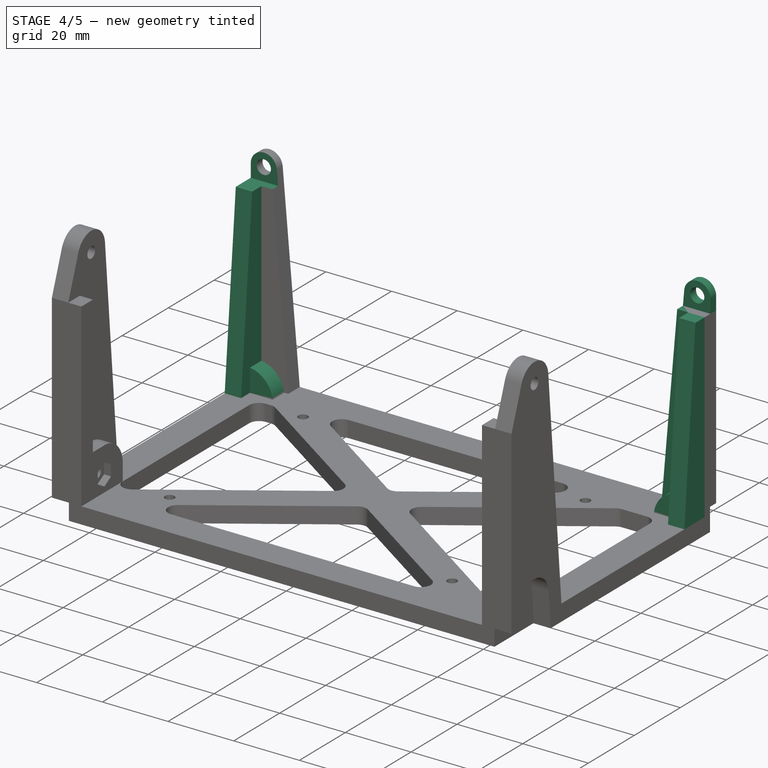
[diagram: stage 4 of 5 — iso view after this stage's code; geometry added in this stage tinted green]
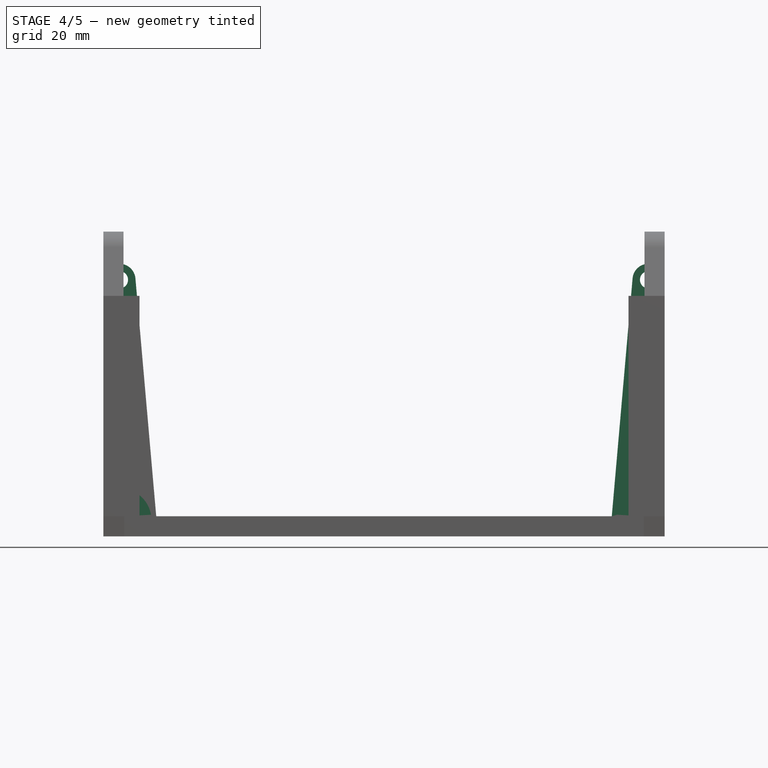
[diagram: stage 4 of 5 — front view after this stage's code; geometry added in this stage tinted green]
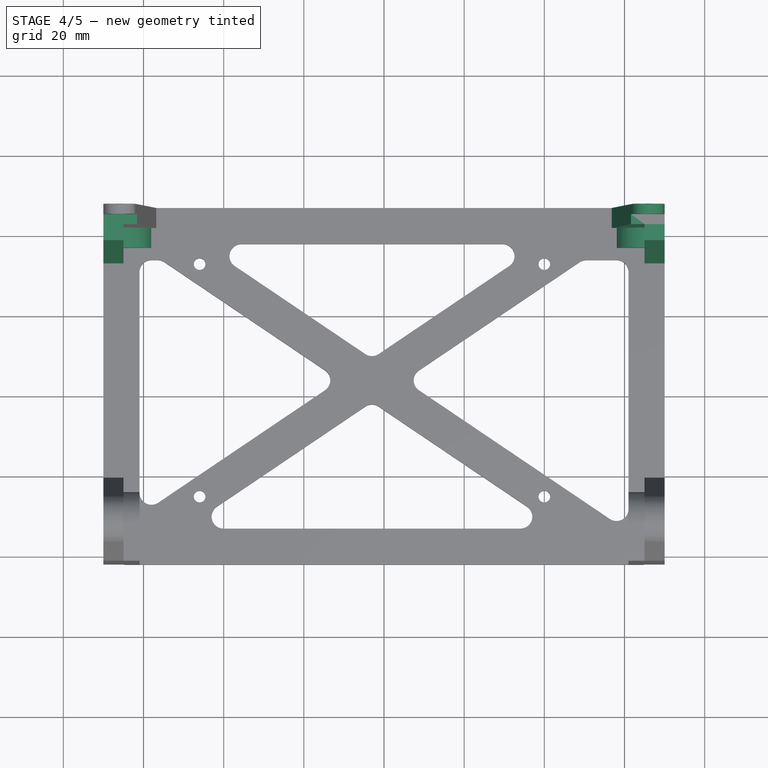
[diagram: stage 4 of 5 — top view after this stage's code; geometry added in this stage tinted green]
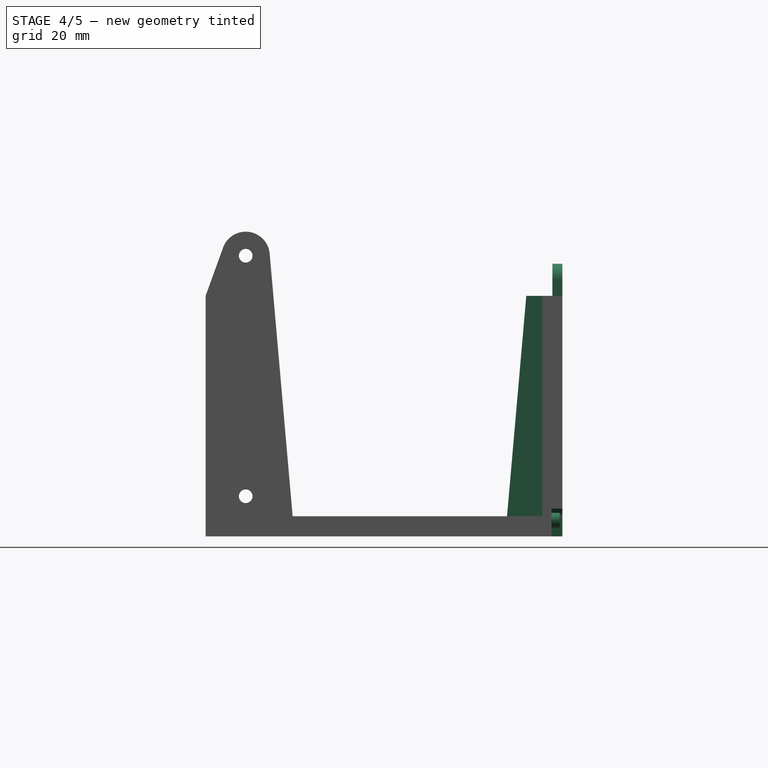
[diagram: stage 4 of 5 — right view after this stage's code; geometry added in this stage tinted green]
FEATURE [Sketcher::SketchObject] Sketch017  label="back_left_side_stiffener_sketch"
  ExternalGeometry = -> [Pocket003]
  FullyConstrained = true
  MapMode = 5
  Placement = pos=(-70,0,0) rot=(0.57735,-0.57735,-0.57735;2.0944rad)
  Support = -> [Pocket003]
  sketch-geometry (4):
    g0: LineSegment StartX=-42 StartY=60 StartZ=0 EndX=-42 EndY=5 EndZ=0
    g1: LineSegment StartX=-42 StartY=5 StartZ=0 EndX=-33.1881 EndY=5 EndZ=0
    g2: LineSegment StartX=-33.1881 StartY=5 StartZ=0 EndX=-38 EndY=60 EndZ=0
    g3: LineSegment StartX=-38 StartY=60 StartZ=0 EndX=-42 EndY=60 EndZ=0
  constraints (10):
    c: Coincident(g-3,g0)
    c: Coincident(g0,g-4)
    c: Coincident(g0,g1)
    c: PointOnObject(g1,g-4)
    c: Coincident(g1,g2)
    c: Coincident(g2,g3)
    c: Coincident(g3,g0)
    c: Horizontal(g3)
    c: Angle(g2,g1) = 1.48353
    c: DistanceX(g3,g3) = 4
FEATURE [PartDesign::Pad] Pad009  label="back_left_side_stiffener"
  BaseFeature = -> Pocket003
  Direction = (1,1,1)
  Length = 10
  Length2 = 100
  Profile = -> Sketch017
  Reversed = true
  Type = 3
  UpToFace = -> Pocket003 [Face75]
FEATURE [Sketcher::SketchObject] Sketch018  label="left_dowel_pin_holder_sketch"
  ExternalGeometry = -> [Pad009]
  FullyConstrained = true
  MapMode = 5
  Placement = pos=(0,42,0) rot=(1,0,0;1.5708rad)
  Support = -> [Pad009]
  sketch-geometry (4):
    g0: GeomPoint X=-66 Y=4 Z=0
    g1: ArcOfCircle CenterX=-66 CenterY=4 CenterZ=0 NormalX=0 NormalY=0 NormalZ=1 AngleXU=0 Radius=8 StartAngle=0.125328 EndAngle=1.44547
    g2: LineSegment StartX=-65 StartY=11.9373 StartZ=0 EndX=-65 EndY=5 EndZ=0
    g3: LineSegment StartX=-65 StartY=5 StartZ=0 EndX=-58.0627 EndY=5 EndZ=0
  constraints (10):
    c: DistanceX(g-5,g0) = 4
    c: DistanceY(g-5,g0) = 4
    c: Coincident(g0,g1)
    c: Radius(g1) = 8
    c: PointOnObject(g1,g-4)
    c: PointOnObject(g1,g-3)
    c: Coincident(g2,g1)
    c: Coincident(g2,g-4)
    c: Coincident(g3,g2)
    c: Coincident(g3,g1)
FEATURE [PartDesign::Pad] Pad010  label="left_dowel_pin_holder"
  BaseFeature = -> Pad009
  Direction = (1,1,1)
  Length = 5
  Length2 = 100
  Profile = -> Sketch018
  Type = 0
FEATURE [Sketcher::SketchObject] Sketch019  label="left_dowel_pin_surround_sketch"
  ExternalGeometry = -> [Pad010]
  FullyConstrained = true
  MapMode = 5
  Placement = pos=(0,47,0) rot=(0,0.707107,0.707107;3.14159rad)
  Support = -> [Pad010]
  sketch-geometry (5):
    g0: ArcOfCircle CenterX=66 CenterY=4 CenterZ=0 NormalX=0 NormalY=0 NormalZ=1 AngleXU=0 Radius=4.2 StartAngle=0.775193 EndAngle=3.05433
    g1: LineSegment StartX=61.816 StartY=4.36605 StartZ=0 EndX=61.434 EndY=0 EndZ=0
    g2: LineSegment StartX=69 StartY=6.93939 StartZ=0 EndX=70 EndY=6.93939 EndZ=0
    g3: LineSegment StartX=70 StartY=6.93939 StartZ=0 EndX=70 EndY=0 EndZ=0
    g4: LineSegment StartX=70 StartY=0 StartZ=0 EndX=61.434 EndY=0 EndZ=0
  constraints (14):
    c: PointOnObject(g1,g-1)
    c: DistanceX(g0,g-3) = 4
    c: DistanceY(g-3,g0) = 4
    c: Tangent(g1,g0) = -1.5708
    c: Parallel(g1,g-4)
    c: Radius(g0) = 4.2
    c: Coincident(g2,g0)
    c: Horizontal(g2)
    c: Coincident(g3,g2)
    c: Coincident(g3,g-3)
    c: Vertical(g3)
    c: Coincident(g4,g3)
    c: Coincident(g4,g1)
    c: DistanceX(g2,g2) = 1
FEATURE [PartDesign::Pocket] Pocket004  label="left_dowel_pin_surround"
  BaseFeature = -> Pad010
  Length = 2.7
  Length2 = 100
  Offset = 0.2
  Profile = -> Sketch019
  Type = 0
FEATURE [Sketcher::SketchObject] Sketch020  label="left_dowel_pin_sketch"
  ExternalGeometry = -> [Pocket004]
  FullyConstrained = true
  MapMode = 5
  Placement = pos=(0,44.3,0) rot=(0,0.707107,0.707107;3.14159rad)
  Support = -> [Pocket004]
  sketch-geometry (1):
    g0: Circle CenterX=66 CenterY=4 CenterZ=0 NormalX=0 NormalY=0 NormalZ=1 AngleXU=0 Radius=1.85
  constraints (2):
    c: Radius(g0) = 1.85
    c: Coincident(g-4,g0)
FEATURE [PartDesign::Pad] Pad011  label="left_dowel_pin"
  BaseFeature = -> Pocket004
  Direction = (1,1,1)
  Length = 2
  Length2 = 100
  Profile = -> Sketch020
  Type = 0
FEATURE [Sketcher::SketchObject] Sketch021  label="left_dowel_hole_trimmer_sketch"
  ExternalGeometry = -> [Pad011]
  FullyConstrained = true
  MapMode = 5
  Placement = pos=(0,42,0) rot=(1,0,0;1.5708rad)
  Support = -> [Pad011]
  sketch-geometry (4):
    g0: LineSegment StartX=-70 StartY=60 StartZ=0 EndX=-61.6348 EndY=60 EndZ=0
    g1: LineSegment StartX=-61.6348 StartY=60 StartZ=0 EndX=-61.6348 EndY=68 EndZ=0
    g2: LineSegment StartX=-61.6348 StartY=68 StartZ=0 EndX=-70 EndY=68 EndZ=0
    g3: LineSegment StartX=-70 StartY=68 StartZ=0 EndX=-70 EndY=60 EndZ=0
  constraints (11):
    c: Coincident(g0,g1)
    c: Coincident(g1,g2)
    c: Coincident(g2,g3)
    c: Coincident(g3,g0)
    c: Horizontal(g0)
    c: Horizontal(g2)
    c: Vertical(g1)
    c: Vertical(g3)
    c: Coincident(g0,g-3)
    c: PointOnObject(g0,g-5)
    c: Tangent(g2,g-4)
FEATURE [PartDesign::Pocket] Pocket005  label="left_dowel_hole_trimmer"
  BaseFeature = -> Pad011
  Length = 0
  Length2 = 100
  Offset = 0.2
  Profile = -> Sketch021
  Type = 3
  UpToFace = -> Pad011 [Face71]
FEATURE [PartDesign::Mirrored] Mirrored005  label="back_dowel_system"
  BaseFeature = -> Pocket005
  MirrorPlane = -> YZ_Plane
  Originals = -> [Pad008,Pocket003,Pad009,Pad010,Pocket004,Pad011,Pocket005]
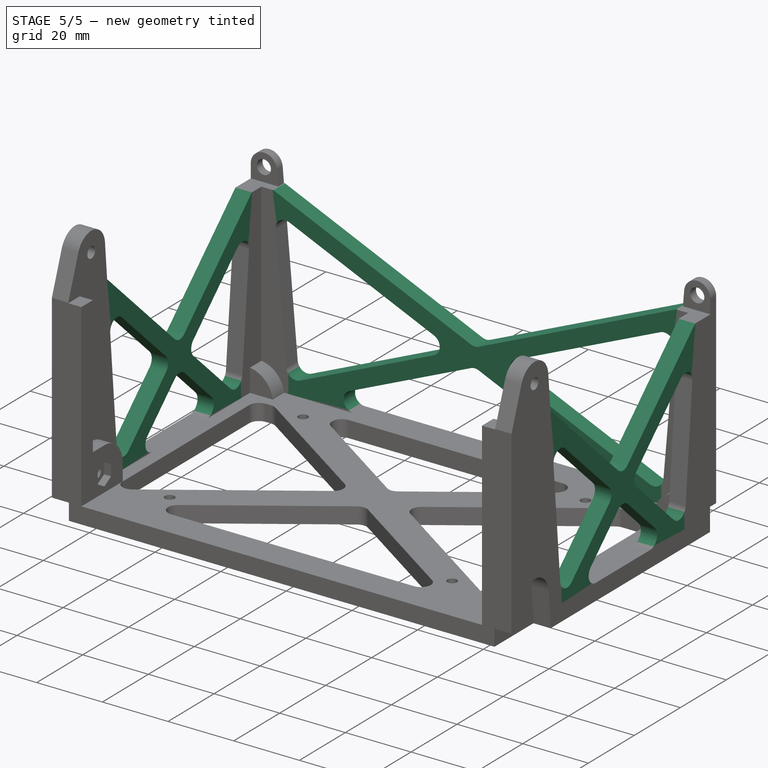
[diagram: stage 5 of 5 — iso view after this stage's code; geometry added in this stage tinted green]
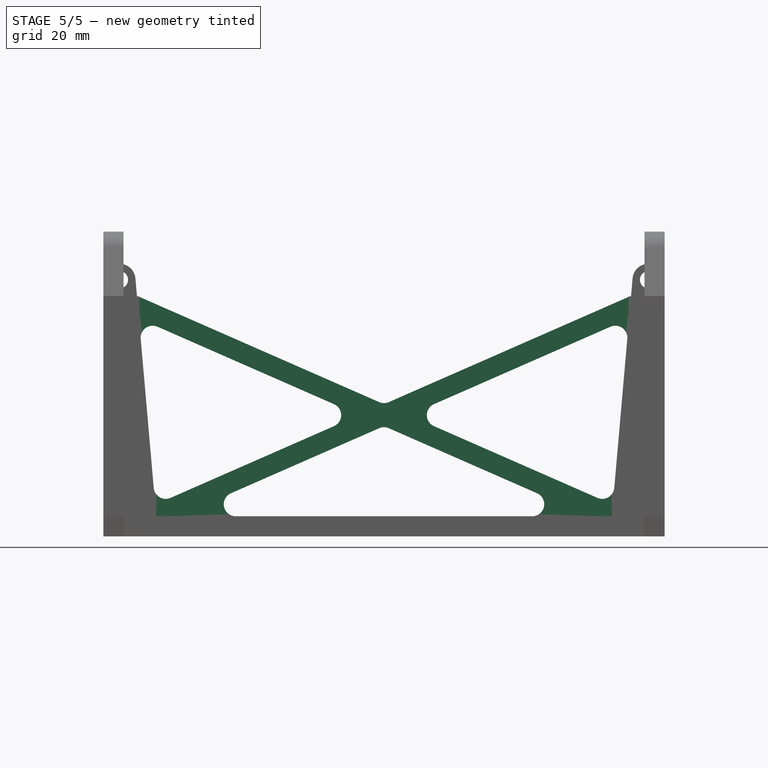
[diagram: stage 5 of 5 — front view after this stage's code; geometry added in this stage tinted green]
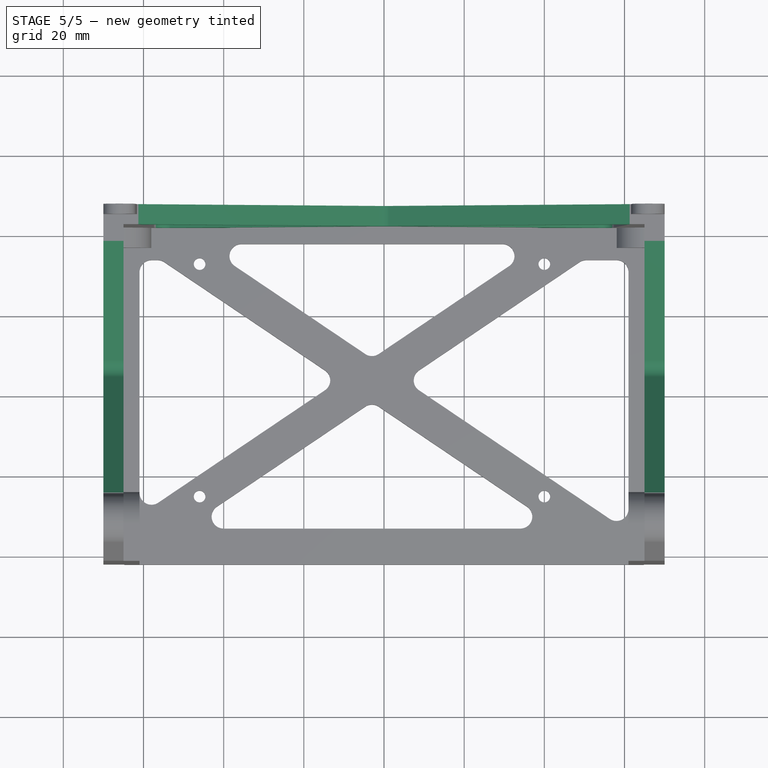
[diagram: stage 5 of 5 — top view after this stage's code; geometry added in this stage tinted green]
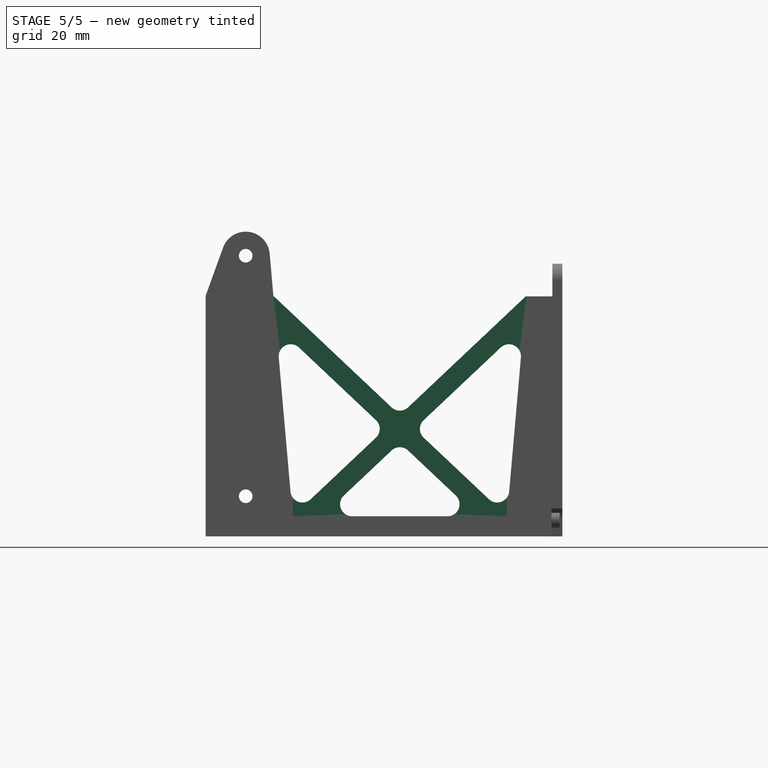
[diagram: stage 5 of 5 — right view after this stage's code; geometry added in this stage tinted green]
FEATURE [Sketcher::SketchObject] Sketch022  label="left_cross_sketch"
  ExternalGeometry = -> [Mirrored005]
  FullyConstrained = true
  MapMode = 5
  Placement = pos=(-70,0,0) rot=(0.57735,-0.57735,-0.57735;2.0944rad)
  Support = -> [Mirrored005]
  sketch-geometry (37):
    g0: LineSegment StartX=-38 StartY=60 StartZ=0 EndX=-8.50775 EndY=32.1725 EndZ=0
    g1: LineSegment StartX=-31.6099 StartY=47.0962 StartZ=0 EndX=-12.4043 EndY=28.9747 EndZ=0
    g2: LineSegment StartX=-28.6808 StartY=9.2529 StartZ=0 EndX=-12.4043 EndY=24.6107 EndZ=0
    g3: LineSegment StartX=18.7121 StartY=47.0962 StartZ=0 EndX=-0.493532 EndY=28.9747 EndZ=0
    g4: LineSegment StartX=-0.493532 StartY=24.6107 StartZ=0 EndX=15.783 EndY=9.2529 EndZ=0
    g5: LineSegment StartX=-4.39006 StartY=32.1725 StartZ=0 EndX=25.1022 EndY=60 EndZ=0
    g6: LineSegment StartX=-4.39006 StartY=21.4128 StartZ=0 EndX=7.51265 EndY=10.182 EndZ=0
    g7: LineSegment StartX=-8.50775 StartY=21.4128 StartZ=0 EndX=-20.4105 EndY=10.182 EndZ=0
    g8: LineSegment StartX=-36.6573 StartY=44.6527 StartZ=0 EndX=-33.7282 EndY=11.1734 EndZ=0
    g9: LineSegment StartX=20.8304 StartY=11.1734 StartZ=0 EndX=23.7595 EndY=44.6527 EndZ=0
    g10: LineSegment StartX=5.45381 StartY=5 StartZ=0 EndX=-18.3516 EndY=5 EndZ=0
    g11: ArcOfCircle CenterX=-6.4489 CenterY=34.3545 CenterZ=0 NormalX=0 NormalY=0 NormalZ=1 AngleXU=0 Radius=3 StartAngle=3.95603 EndAngle=5.46875
    g12: GeomPoint X=-6.4489 Y=30.2299 Z=0
    g13: ArcOfCircle CenterX=-14.4631 CenterY=26.7927 CenterZ=0 NormalX=0 NormalY=0 NormalZ=1 AngleXU=0 Radius=3 StartAngle=5.46875 EndAngle=7.09762
    g14: GeomPoint X=-10.0917 Y=26.7927 Z=0
    g15: ArcOfCircle CenterX=-6.4489 CenterY=19.2308 CenterZ=0 NormalX=0 NormalY=0 NormalZ=1 AngleXU=0 Radius=3 StartAngle=0.814433 EndAngle=2.32716
    g16: GeomPoint X=-6.4489 Y=23.3555 Z=0
    g17: ArcOfCircle CenterX=1.56531 CenterY=26.7927 CenterZ=0 NormalX=0 NormalY=0 NormalZ=1 AngleXU=0 Radius=3 StartAngle=2.32716 EndAngle=3.95603
    g18: GeomPoint X=-2.80608 Y=26.7927 Z=0
    g19: ArcOfCircle CenterX=-33.6687 CenterY=44.9142 CenterZ=0 NormalX=0 NormalY=0 NormalZ=1 AngleXU=0 Radius=3 StartAngle=0.814433 EndAngle=3.22886
    g20: GeomPoint X=-37.3445 Y=52.5071 Z=0
    g21: ArcOfCircle CenterX=-30.7396 CenterY=11.4349 CenterZ=0 NormalX=0 NormalY=0 NormalZ=1 AngleXU=0 Radius=3 StartAngle=3.22886 EndAngle=5.46875
    g22: GeomPoint X=-33.1881 Y=5 Z=0
    g23: ArcOfCircle CenterX=-18.3516 CenterY=8 CenterZ=0 NormalX=0 NormalY=0 NormalZ=1 AngleXU=0 Radius=3 StartAngle=2.32716 EndAngle=4.71239
    g24: GeomPoint X=-25.9025 Y=5 Z=0
    g25: ArcOfCircle CenterX=5.45381 CenterY=8 CenterZ=0 NormalX=0 NormalY=0 NormalZ=1 AngleXU=0 Radius=3 StartAngle=4.71239 EndAngle=7.09762
    g26: GeomPoint X=13.0047 Y=5 Z=0
    g27: ArcOfCircle CenterX=17.8418 CenterY=11.4349 CenterZ=0 NormalX=0 NormalY=0 NormalZ=1 AngleXU=0 Radius=3 StartAngle=3.95603 EndAngle=6.19592
    g28: GeomPoint X=20.2903 Y=5 Z=0
    g29: ArcOfCircle CenterX=20.7709 CenterY=44.9142 CenterZ=0 NormalX=0 NormalY=0 NormalZ=1 AngleXU=0 Radius=3 StartAngle=6.19592 EndAngle=8.61034
    g30: GeomPoint X=24.4466 Y=52.5071 Z=0
    g31: LineSegment StartX=-38 StartY=60 StartZ=0 EndX=-36.6573 EndY=44.6527 EndZ=0
    g32: LineSegment StartX=-33.7282 StartY=11.1734 StartZ=0 EndX=-33.1881 EndY=5 EndZ=0
    g33: LineSegment StartX=-18.3516 StartY=5 StartZ=0 EndX=-33.1881 EndY=5 EndZ=0
    g34: LineSegment StartX=5.45381 StartY=5 StartZ=0 EndX=20.2903 EndY=5 EndZ=0
    g35: LineSegment StartX=20.8304 StartY=11.1734 StartZ=0 EndX=20.2903 EndY=5 EndZ=0
    g36: LineSegment StartX=23.7595 StartY=44.6527 StartZ=0 EndX=25.1022 EndY=60 EndZ=0
  constraints (79):
    c: Coincident(g0,g-3)
    c: Coincident(g28,g-4)
    c: PointOnObject(g20,g-3)
    c: PointOnObject(g26,g-5)
    c: Coincident(g22,g-5)
    c: PointOnObject(g5,g-4)
    c: PointOnObject(g30,g-4)
    c: PointOnObject(g24,g-5)
    c: Parallel(g1,g0)
    c: Parallel(g3,g2)
    c: Distance(g0,g1) = 5
    c: Distance(g5,g3) = 5
    c: Tangent(g0,g4)
    c: Tangent(g2,g5)
    c: Tangent(g1,g6)
    c: Tangent(g3,g7)
    c: PointOnObject(g12,g0)
    c: PointOnObject(g12,g5)
    c: Tangent(g0,g11) = -1.5708
    c: Tangent(g5,g11) = -1.5708
    c: PointOnObject(g14,g1)
    c: PointOnObject(g14,g2)
    c: Tangent(g1,g13) = 1.5708
    c: Tangent(g2,g13) = -1.5708
    c: PointOnObject(g16,g7)
    c: PointOnObject(g16,g6)
    c: Tangent(g7,g15) = -1.5708
    c: Tangent(g6,g15) = 1.5708
    c: PointOnObject(g18,g4)
    c: PointOnObject(g18,g3)
    c: Tangent(g4,g17) = -1.5708
    c: Tangent(g3,g17) = -1.5708
    c: PointOnObject(g20,g1)
    c: PointOnObject(g20,g8)
    c: Tangent(g1,g19) = 1.5708
    c: Tangent(g8,g19) = -1.5708
    c: PointOnObject(g22,g8)
    c: PointOnObject(g22,g2)
    c: Tangent(g8,g21) = -1.5708
    c: Tangent(g2,g21) = -1.5708
    c: PointOnObject(g24,g7)
    c: PointOnObject(g24,g10)
    c: Tangent(g7,g23) = -1.5708
    c: Tangent(g10,g23) = 1.5708
    c: PointOnObject(g26,g10)
    c: PointOnObject(g26,g6)
    c: Tangent(g10,g25) = 1.5708
    c: Tangent(g6,g25) = 1.5708
    c: PointOnObject(g28,g4)
    c: PointOnObject(g28,g9)
    c: Tangent(g4,g27) = -1.5708
    c: Tangent(g9,g27) = -1.5708
    c: PointOnObject(g30,g3)
    c: PointOnObject(g30,g9)
    c: Tangent(g3,g29) = -1.5708
    c: Tangent(g9,g29) = -1.5708
    c: Equal(g11,g13)
    c: Equal(g13,g15)
    c: Equal(g15,g17)
    c: Equal(g17,g19)
    c: Equal(g19,g21)
    c: Equal(g21,g23)
    c: Equal(g23,g25)
    c: Equal(g25,g27)
    c: Equal(g27,g29)
    c: Radius(g11) = 3
    c: Horizontal(g5,g0)
    c: Coincident(g31,g0)
    c: Coincident(g31,g19)
    c: Coincident(g32,g21)
    c: Coincident(g32,g22)
    c: Coincident(g33,g23)
    c: Coincident(g33,g32)
    c: Coincident(g34,g25)
    c: Coincident(g34,g28)
    c: Coincident(g35,g27)
    c: Coincident(g35,g34)
    c: Coincident(g36,g29)
    c: Coincident(g36,g5)
FEATURE [PartDesign::Pad] Pad012  label="left_cross"
  BaseFeature = -> Mirrored005
  Direction = (1,1,1)
  Length = 10
  Length2 = 100
  Profile = -> Sketch022
  Type = 3
  UpToFace = -> Mirrored005 [Face128]
FEATURE [PartDesign::Mirrored] Mirrored006  label="side_cross"
  BaseFeature = -> Pad012
  MirrorPlane = -> YZ_Plane
  Originals = -> [Pad012]
FEATURE [Sketcher::SketchObject] Sketch023  label="left_back_cross_sketch"
  ExternalGeometry = -> [Mirrored006]
  FullyConstrained = true
  MapMode = 5
  Placement = pos=(0,47,0) rot=(0,0.707107,0.707107;3.14159rad)
  Support = -> [Mirrored006]
  sketch-geometry (22):
    g0: LineSegment StartX=-66 StartY=4 StartZ=0 EndX=61.6348 EndY=60 EndZ=0
    g1: LineSegment StartX=-61.6348 StartY=60 StartZ=0 EndX=66 EndY=4 EndZ=0
    g2: LineSegment StartX=1.20534 StartY=26.9687 StartZ=0 EndX=38.1772 EndY=10.7472 EndZ=0
    g3: LineSegment StartX=56.5029 StartY=52.2883 StartZ=0 EndX=12.4837 EndY=32.9748 EndZ=0
    g4: LineSegment StartX=2e-16 StartY=27.2215 StartZ=0 EndX=2e-16 EndY=33.2337 EndZ=0
    g5: LineSegment StartX=1.20534 StartY=33.4865 StartZ=0 EndX=61.6348 EndY=60 EndZ=0
    g6: LineSegment StartX=12.4837 StartY=27.4804 StartZ=0 EndX=53.2484 EndY=9.59478 EndZ=0
    g7: LineSegment StartX=60.6969 StartY=49.2796 StartZ=0 EndX=57.4424 EndY=12.0805 EndZ=0
    g8: ArcOfCircle CenterX=0 CenterY=24.2215 CenterZ=0 NormalX=0 NormalY=0 NormalZ=1 AngleXU=0 Radius=3 StartAngle=1.15734 EndAngle=1.5708
    g9: ArcOfCircle CenterX=0 CenterY=36.2337 CenterZ=0 NormalX=0 NormalY=0 NormalZ=1 AngleXU=0 Radius=3 StartAngle=4.71239 EndAngle=5.12585
    g10: ArcOfCircle CenterX=13.6891 CenterY=30.2276 CenterZ=0 NormalX=0 NormalY=0 NormalZ=1 AngleXU=0 Radius=3 StartAngle=1.98426 EndAngle=4.29893
    g11: GeomPoint X=6.2223 Y=30.2276 Z=0
    g12: ArcOfCircle CenterX=54.4538 CenterY=12.342 CenterZ=0 NormalX=0 NormalY=0 NormalZ=1 AngleXU=0 Radius=3 StartAngle=4.29893 EndAngle=6.19592
    g13: GeomPoint X=57.0779 Y=7.9146 Z=0
    g14: ArcOfCircle CenterX=57.7083 CenterY=49.5411 CenterZ=0 NormalX=0 NormalY=0 NormalZ=1 AngleXU=0 Radius=3 StartAngle=6.19592 EndAngle=8.26744
    g15: GeomPoint X=61.138 Y=54.322 Z=0
    g16: LineSegment StartX=-56.8229 StartY=5 StartZ=0 EndX=36.9719 EndY=5 EndZ=0
    g17: ArcOfCircle CenterX=36.9719 CenterY=8 CenterZ=0 NormalX=0 NormalY=0 NormalZ=1 AngleXU=0 Radius=3 StartAngle=4.71239 EndAngle=7.44052
    g18: GeomPoint X=51.2762 Y=5 Z=0
    g19: LineSegment StartX=60.6969 StartY=49.2796 StartZ=0 EndX=61.6348 EndY=60 EndZ=0
    g20: LineSegment StartX=57.4424 StartY=12.0805 StartZ=0 EndX=56.8229 EndY=5 EndZ=0
    g21: LineSegment StartX=36.9719 StartY=5 StartZ=0 EndX=56.8229 EndY=5 EndZ=0
  constraints (54):
    c: Coincident(g0,g-3)
    c: PointOnObject(g0,g-5)
    c: PointOnObject(g1,g-6)
    c: Coincident(g1,g-4)
    c: Horizontal(g0,g1)
    c: Horizontal(g1,g-8)
    c: PointOnObject(g18,g-7)
    c: PointOnObject(g15,g-5)
    c: PointOnObject(g11,g1)
    c: Parallel(g3,g0)
    c: Parallel(g1,g2)
    c: Distance(g0,g3) = 5
    c: Distance(g1,g2) = 5
    c: Vertical(g4)
    c: Coincident(g5,g0)
    c: PointOnObject(g13,g-5)
    c: PointOnObject(g13,g1)
    c: PointOnObject(g8,g-2)
    c: Tangent(g2,g8) = 1.5708
    c: PointOnObject(g9,g-2)
    c: Coincident(g4,g9)
    c: Tangent(g5,g9) = -1.5708
    c: PointOnObject(g5,g0)
    c: Coincident(g4,g8)
    c: PointOnObject(g4,g-2)
    c: PointOnObject(g11,g3)
    c: PointOnObject(g11,g6)
    c: Tangent(g3,g10) = -1.5708
    c: Tangent(g6,g10) = -1.5708
    c: PointOnObject(g13,g6)
    c: PointOnObject(g13,g7)
    c: Tangent(g6,g12) = -1.5708
    c: Tangent(g7,g12) = 1.5708
    c: PointOnObject(g15,g7)
    c: PointOnObject(g15,g3)
    c: Tangent(g7,g14) = 1.5708
    c: Tangent(g3,g14) = -1.5708
    c: Coincident(g16,g-7)
    c: PointOnObject(g18,g2)
    c: PointOnObject(g18,g16)
    c: Tangent(g2,g17) = 1.5708
    c: Tangent(g16,g17) = -1.5708
    c: Equal(g9,g8)
    c: Equal(g8,g10)
    c: Equal(g10,g14)
    c: Equal(g14,g12)
    c: Equal(g12,g17)
    c: Radius(g10) = 3
    c: Coincident(g19,g14)
    c: Coincident(g19,g5)
    c: Coincident(g20,g12)
    c: Coincident(g20,g-7)
    c: Coincident(g21,g17)
    c: Coincident(g21,g20)
FEATURE [PartDesign::Pad] Pad013  label="left_back_cross"
  BaseFeature = -> Mirrored006
  Direction = (1,1,1)
  Length = 10
  Length2 = 100
  Profile = -> Sketch023
  Reversed = true
  Type = 3
  UpToFace = -> Mirrored006 [Face146]
FEATURE [PartDesign::Mirrored] Mirrored007  label="back_cross"
  BaseFeature = -> Pad013
  MirrorPlane = -> YZ_Plane
  Originals = -> [Pad013]
FEATURE [Sketcher::SketchObject] Sketch024  label="left_top_peel_sketch"
  ExternalGeometry = -> [Mirrored007]
  FullyConstrained = true
  MapMode = 5
  Placement = pos=(0,1.32e-14,60) rot=(0,0,1;0rad)
  Support = -> [Mirrored007]
  sketch-geometry (10):
    g0: LineSegment StartX=-70 StartY=-25.1022 StartZ=0 EndX=-70 EndY=44.5 EndZ=0
    g1: LineSegment StartX=-70 StartY=44.5 StartZ=0 EndX=-61.6348 EndY=44.5 EndZ=0
    g2: LineSegment StartX=-61.6348 StartY=44.5 StartZ=0 EndX=-61.6348 EndY=47 EndZ=0
    g3: LineSegment StartX=-61.6348 StartY=47 StartZ=0 EndX=-46.6348 EndY=47 EndZ=0
    g4: LineSegment StartX=-46.6348 StartY=47 StartZ=0 EndX=-46.6348 EndY=-25.1022 EndZ=0
    g5: LineSegment StartX=-46.6348 StartY=-25.1022 StartZ=0 EndX=-70 EndY=-25.1022 EndZ=0
    g6: LineSegment StartX=-65 StartY=-37 StartZ=0 EndX=-61 EndY=-37 EndZ=0
    g7: LineSegment StartX=-61 StartY=-37 StartZ=0 EndX=-61 EndY=-42 EndZ=0
    g8: LineSegment StartX=-61 StartY=-42 StartZ=0 EndX=-65 EndY=-42 EndZ=0
    g9: LineSegment StartX=-65 StartY=-42 StartZ=0 EndX=-65 EndY=-37 EndZ=0
  constraints (24):
    c: Coincident(g0,g-6)
    c: Coincident(g0,g1)
    c: Coincident(g1,g-7)
    c: Coincident(g1,g2)
    c: Coincident(g2,g-7)
    c: Coincident(g2,g3)
    c: Horizontal(g3)
    c: Coincident(g3,g4)
    c: Vertical(g4)
    c: Coincident(g4,g5)
    c: Coincident(g5,g0)
    c: Horizontal(g5)
    c: DistanceX(g3,g3) = 15
    c: Coincident(g6,g7)
    c: Coincident(g7,g8)
    c: Coincident(g8,g9)
    c: Coincident(g9,g6)
    c: Horizontal(g6)
    c: Horizontal(g8)
    c: Vertical(g7)
    c: Vertical(g9)
    c: Coincident(g6,g-4)
    c: Coincident(g7,g-3)
    c: Coincident(g0,g-8)
FEATURE [PartDesign::Pocket] Pocket006  label="left_top_peel"
  BaseFeature = -> Mirrored007
  Length = 0.15
  Length2 = 100
  Profile = -> Sketch024
  Type = 0
FEATURE [PartDesign::Mirrored] Mirrored008  label="top_peel"
  BaseFeature = -> Pocket006
  MirrorPlane = -> YZ_Plane
  Originals = -> [Pocket006]
FEATURE [Sketcher::SketchObject] Sketch025  label="bot_M2-5_hex_sk"
  ExternalGeometry = -> [Mirrored008]
  FullyConstrained = true
  MapMode = 5
  Placement = pos=(0,0,0) rot=(1,0,0;3.14159rad)
  Support = -> [Mirrored008]
  sketch-geometry (28):
    g0: LineSegment StartX=-43.375 StartY=26.5155 StartZ=0 EndX=-46 EndY=28.0311 EndZ=0
    g1: LineSegment StartX=-46 StartY=28.0311 StartZ=0 EndX=-48.625 EndY=26.5155 EndZ=0
    g2: LineSegment StartX=-48.625 StartY=26.5155 StartZ=0 EndX=-48.625 EndY=23.4845 EndZ=0
    g3: LineSegment StartX=-48.625 StartY=23.4845 StartZ=0 EndX=-46 EndY=21.9689 EndZ=0
    g4: LineSegment StartX=-46 StartY=21.9689 StartZ=0 EndX=-43.375 EndY=23.4845 EndZ=0
    g5: LineSegment StartX=-43.375 StartY=23.4845 StartZ=0 EndX=-43.375 EndY=26.5155 EndZ=0
    g6: Circle CenterX=-46 CenterY=25 CenterZ=0 NormalX=0 NormalY=0 NormalZ=1 AngleXU=0 Radius=3.03109
    g7: LineSegment StartX=37.375 StartY=23.4845 StartZ=0 EndX=40 EndY=21.9689 EndZ=0
    g8: LineSegment StartX=40 StartY=21.9689 StartZ=0 EndX=42.625 EndY=23.4845 EndZ=0
    g9: LineSegment StartX=42.625 StartY=23.4845 StartZ=0 EndX=42.625 EndY=26.5155 EndZ=0
    g10: LineSegment StartX=42.625 StartY=26.5155 StartZ=0 EndX=40 EndY=28.0311 EndZ=0
    g11: LineSegment StartX=40 StartY=28.0311 StartZ=0 EndX=37.375 EndY=26.5155 EndZ=0
    g12: LineSegment StartX=37.375 StartY=26.5155 StartZ=0 EndX=37.375 EndY=23.4845 EndZ=0
    g13: Circle CenterX=40 CenterY=25 CenterZ=0 NormalX=0 NormalY=0 NormalZ=1 AngleXU=0 Radius=3.03109
    g14: LineSegment StartX=40 StartY=-29.9689 StartZ=0 EndX=37.375 EndY=-31.4845 EndZ=0
    g15: LineSegment StartX=37.375 StartY=-31.4845 StartZ=0 EndX=37.375 EndY=-34.5155 EndZ=0
    g16: LineSegment StartX=37.375 StartY=-34.5155 StartZ=0 EndX=40 EndY=-36.0311 EndZ=0
    g17: LineSegment StartX=40 StartY=-36.0311 StartZ=0 EndX=42.625 EndY=-34.5155 EndZ=0
    g18: LineSegment StartX=42.625 StartY=-34.5155 StartZ=0 EndX=42.625 EndY=-31.4845 EndZ=0
    g19: LineSegment StartX=42.625 StartY=-31.4845 StartZ=0 EndX=40 EndY=-29.9689 EndZ=0
    g20: Circle CenterX=40 CenterY=-33 CenterZ=0 NormalX=0 NormalY=0 NormalZ=1 AngleXU=0 Radius=3.03109
    g21: LineSegment StartX=-43.375 StartY=-31.4845 StartZ=0 EndX=-46 EndY=-29.9689 EndZ=0
    g22: LineSegment StartX=-46 StartY=-29.9689 StartZ=0 EndX=-48.625 EndY=-31.4845 EndZ=0
    g23: LineSegment StartX=-48.625 StartY=-31.4845 StartZ=0 EndX=-48.625 EndY=-34.5155 EndZ=0
    g24: LineSegment StartX=-48.625 StartY=-34.5155 StartZ=0 EndX=-46 EndY=-36.0311 EndZ=0
    g25: LineSegment StartX=-46 StartY=-36.0311 StartZ=0 EndX=-43.375 EndY=-34.5155 EndZ=0
    g26: LineSegment StartX=-43.375 StartY=-34.5155 StartZ=0 EndX=-43.375 EndY=-31.4845 EndZ=0
    g27: Circle CenterX=-46 CenterY=-33 CenterZ=0 NormalX=0 NormalY=0 NormalZ=1 AngleXU=0 Radius=3.03109
  constraints (64):
    c: Coincident(g0,g1)
    c: Coincident(g1,g2)
    c: Coincident(g2,g3)
    c: Coincident(g3,g4)
    c: Coincident(g4,g5)
    c: Coincident(g5,g0)
    c: Equal(g0, g1-g5) x5
    c: PointOnObject(g0,g6)
    c: PointOnObject(g1,g6)
    c: PointOnObject(g2,g6)
    c: PointOnObject(g3,g6)
    c: PointOnObject(g4,g6)
    c: PointOnObject(g5,g6)
    c: Coincident(g6,g-3)
    c: Coincident(g7,g8)
    c: Coincident(g8,g9)
    c: Coincident(g9,g10)
    c: Coincident(g10,g11)
    c: Coincident(g11,g12)
    c: Coincident(g12,g7)
    c: Equal(g7, g8-g12) x5
    c: PointOnObject(g7,g13)
    c: PointOnObject(g8,g13)
    c: PointOnObject(g9,g13)
    c: PointOnObject(g10,g13)
    c: PointOnObject(g11,g13)
    c: PointOnObject(g12,g13)
    c: Coincident(g13,g-4)
    c: Coincident(g14,g15)
    c: Coincident(g15,g16)
    c: Coincident(g16,g17)
    c: Coincident(g17,g18)
    c: Coincident(g18,g19)
    c: Coincident(g19,g14)
    c: Equal(g14, g15-g19) x5
    c: PointOnObject(g14,g20)
    c: PointOnObject(g15,g20)
    c: PointOnObject(g16,g20)
    c: PointOnObject(g17,g20)
    c: PointOnObject(g18,g20)
    c: PointOnObject(g19,g20)
    c: Coincident(g20,g-5)
    c: Coincident(g21,g22)
    c: Coincident(g22,g23)
    c: Coincident(g23,g24)
    c: Coincident(g24,g25)
    c: Coincident(g25,g26)
    c: Coincident(g26,g21)
    c: Equal(g21, g22-g26) x5
    c: PointOnObject(g21,g27)
    c: PointOnObject(g22,g27)
    c: PointOnObject(g23,g27)
    c: PointOnObject(g24,g27)
    c: PointOnObject(g25,g27)
    c: PointOnObject(g26,g27)
    c: Coincident(g27,g-6)
    c: Vertical(g0,g6)
    c: DistanceX(g1,g0) = 5.25  'M2-5_net_edge_width'
    c: Vertical(g10,g13)
    c: DistanceX(g11,g9) = 5.25
    c: Vertical(g21,g27)
    c: DistanceX(g22,g21) = 5.25
    c: Vertical(g20,g14)
    c: DistanceX(g14,g18) = 5.25
FEATURE [PartDesign::Pocket] Pocket007  label="bot_M2-5_hex"
  BaseFeature = -> Mirrored008
  Length = 1.75
  Length2 = 100
  Profile = -> Sketch025
  Type = 0
FEATURE [PartDesign::Body] Body  label="Jetson_box"
  Group = -> [Sketch,Pad,Sketch001,Hole,Sketch002,Pad001,Mirrored,Sketch004,Pocket,Sketch005,Pad002,Mirrored002,Sketch006,Pad003,Sketch007,Pad004,Mirrored003,Sketch008,Pad005,Sketch009,Sketch010,Pad006,Sketch011,Pad007,Pocket001,Sketch012,Hole001,Sketch013,Pocket002,Sketch014,Hole002,Mirrored004,Sketch015,Pad008,Sketch016,Pocket003,Sketch017,Pad009,Sketch018,Pad010,Sketch019,Pocket004,Sketch020,Pad011,+14 more]
  Origin = -> Origin
  Tip = -> Pocket007
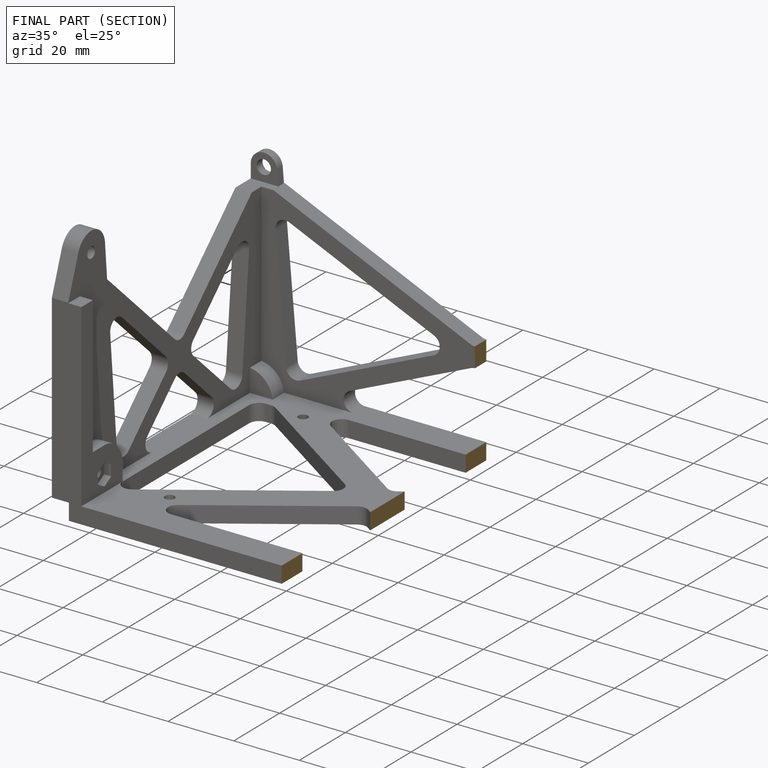
[diagram: finished part — half-section view (interior)]
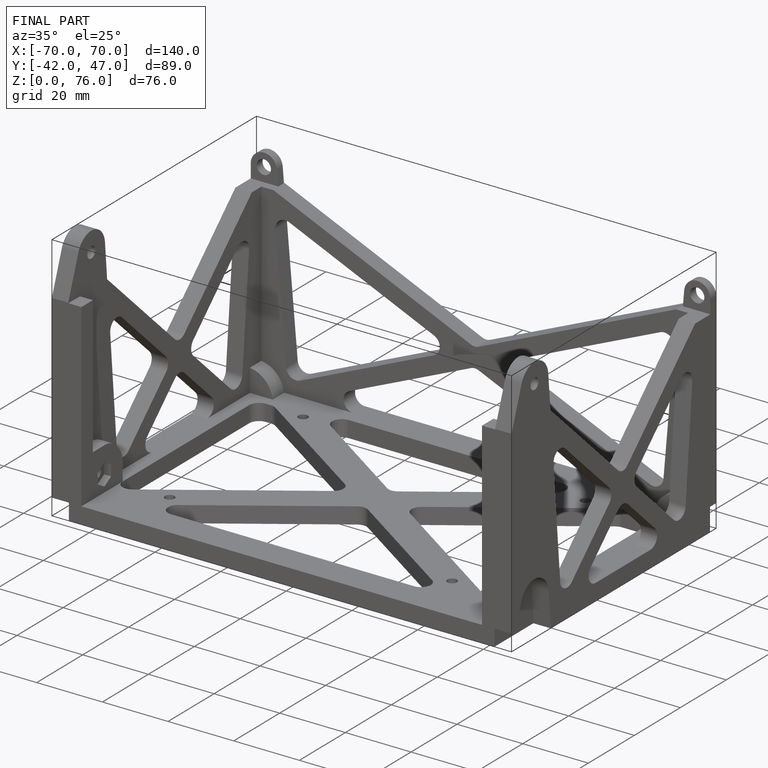
[diagram: finished part — iso view with bounding-box wireframe]
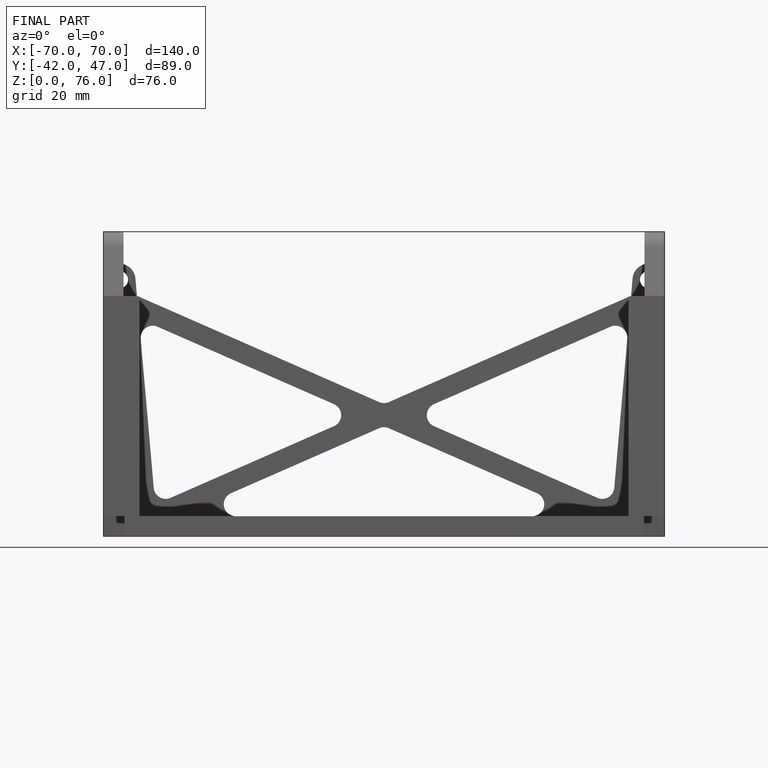
[diagram: finished part — front view with bounding-box wireframe]
